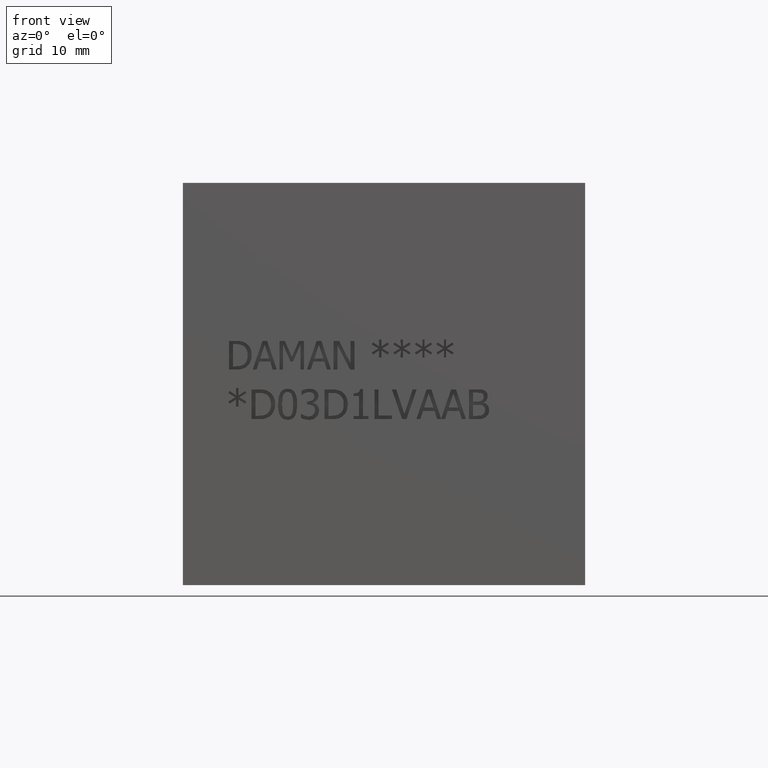
[diagram: clean part render]
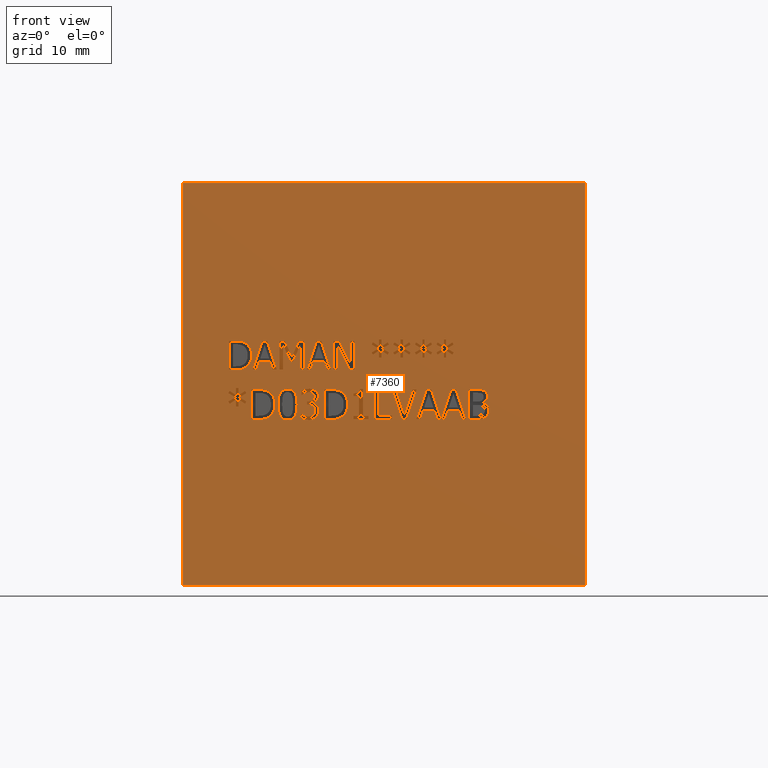
[diagram: same view with one face highlighted and labeled with its STEP entity id]
A machine part, front view. The second image highlights one B-rep face of the part: STEP entity #7360.
In plain terms, the highlighted planar face has unit normal (0, -1, 0).
Its self-contained STEP definition (entity closure, byte-faithful):
#181=FACE_BOUND('',#1001,.T.);
#182=FACE_BOUND('',#1002,.T.);
#183=FACE_BOUND('',#1003,.T.);
#184=FACE_BOUND('',#1004,.T.);
#185=FACE_BOUND('',#1005,.T.);
#186=FACE_BOUND('',#1006,.T.);
#187=FACE_BOUND('',#1007,.T.);
#188=FACE_BOUND('',#1008,.T.);
#189=FACE_BOUND('',#1009,.T.);
#190=FACE_BOUND('',#1010,.T.);
#191=FACE_BOUND('',#1011,.T.);
#192=FACE_BOUND('',#1012,.T.);
#193=FACE_BOUND('',#1013,.T.);
#194=FACE_BOUND('',#1014,.T.);
#195=FACE_BOUND('',#1015,.T.);
#196=FACE_BOUND('',#1016,.T.);
#197=FACE_BOUND('',#1017,.T.);
#198=FACE_BOUND('',#1018,.T.);
#199=FACE_BOUND('',#1019,.T.);
#235=B_SPLINE_CURVE_WITH_KNOTS('',2,(#9718,#9719,#9720,#9721),
 .UNSPECIFIED.,.F.,.F.,(3,1,3),(0.,1.,2.),.UNSPECIFIED.);
#245=B_SPLINE_CURVE_WITH_KNOTS('',2,(#9866,#9867,#9868,#9869),
 .UNSPECIFIED.,.F.,.F.,(3,1,3),(0.,1.,2.),.UNSPECIFIED.);
#247=B_SPLINE_CURVE_WITH_KNOTS('',2,(#9887,#9888,#9889,#9890),
 .UNSPECIFIED.,.F.,.F.,(3,1,3),(0.,1.,2.),.UNSPECIFIED.);
#249=B_SPLINE_CURVE_WITH_KNOTS('',2,(#9924,#9925,#9926,#9927),
 .UNSPECIFIED.,.F.,.F.,(3,1,3),(0.,1.,2.),.UNSPECIFIED.);
#251=B_SPLINE_CURVE_WITH_KNOTS('',2,(#9942,#9943,#9944,#9945),
 .UNSPECIFIED.,.F.,.F.,(3,1,3),(0.,1.,2.),.UNSPECIFIED.);
#261=B_SPLINE_CURVE_WITH_KNOTS('',2,(#10164,#10165,#10166,#10167),
 .UNSPECIFIED.,.F.,.F.,(3,1,3),(0.,1.,2.),.UNSPECIFIED.);
#263=B_SPLINE_CURVE_WITH_KNOTS('',2,(#10185,#10186,#10187,#10188),
 .UNSPECIFIED.,.F.,.F.,(3,1,3),(0.,1.,2.),.UNSPECIFIED.);
#265=B_SPLINE_CURVE_WITH_KNOTS('',2,(#10222,#10223,#10224,#10225),
 .UNSPECIFIED.,.F.,.F.,(3,1,3),(0.,1.,2.),.UNSPECIFIED.);
#267=B_SPLINE_CURVE_WITH_KNOTS('',2,(#10240,#10241,#10242,#10243),
 .UNSPECIFIED.,.F.,.F.,(3,1,3),(0.,1.,2.),.UNSPECIFIED.);
#285=B_SPLINE_CURVE_WITH_KNOTS('',2,(#10411,#10412,#10413,#10414),
 .UNSPECIFIED.,.F.,.F.,(3,1,3),(0.,1.,2.),.UNSPECIFIED.);
#287=B_SPLINE_CURVE_WITH_KNOTS('',2,(#10432,#10433,#10434,#10435),
 .UNSPECIFIED.,.F.,.F.,(3,1,3),(0.,1.,2.),.UNSPECIFIED.);
#289=B_SPLINE_CURVE_WITH_KNOTS('',2,(#10451,#10452,#10453,#10454),
 .UNSPECIFIED.,.F.,.F.,(3,1,3),(0.,1.,2.),.UNSPECIFIED.);
#291=B_SPLINE_CURVE_WITH_KNOTS('',2,(#10469,#10470,#10471,#10472),
 .UNSPECIFIED.,.F.,.F.,(3,1,3),(0.,1.,2.),.UNSPECIFIED.);
#293=B_SPLINE_CURVE_WITH_KNOTS('',2,(#10488,#10489,#10490,#10491),
 .UNSPECIFIED.,.F.,.F.,(3,1,3),(0.,1.,2.),.UNSPECIFIED.);
#295=B_SPLINE_CURVE_WITH_KNOTS('',2,(#10509,#10510,#10511,#10512),
 .UNSPECIFIED.,.F.,.F.,(3,1,3),(0.,1.,2.),.UNSPECIFIED.);
#297=B_SPLINE_CURVE_WITH_KNOTS('',2,(#10528,#10529,#10530,#10531),
 .UNSPECIFIED.,.F.,.F.,(3,1,3),(0.,1.,2.),.UNSPECIFIED.);
#299=B_SPLINE_CURVE_WITH_KNOTS('',2,(#10565,#10566,#10567,#10568),
 .UNSPECIFIED.,.F.,.F.,(3,1,3),(0.,1.,2.),.UNSPECIFIED.);
#301=B_SPLINE_CURVE_WITH_KNOTS('',2,(#10584,#10585,#10586,#10587),
 .UNSPECIFIED.,.F.,.F.,(3,1,3),(0.,1.,2.),.UNSPECIFIED.);
#303=B_SPLINE_CURVE_WITH_KNOTS('',2,(#10603,#10604,#10605,#10606),
 .UNSPECIFIED.,.F.,.F.,(3,1,3),(0.,1.,2.),.UNSPECIFIED.);
#305=B_SPLINE_CURVE_WITH_KNOTS('',2,(#10622,#10623,#10624,#10625),
 .UNSPECIFIED.,.F.,.F.,(3,1,3),(0.,1.,2.),.UNSPECIFIED.);
#307=B_SPLINE_CURVE_WITH_KNOTS('',2,(#10641,#10642,#10643,#10644),
 .UNSPECIFIED.,.F.,.F.,(3,1,3),(0.,1.,2.),.UNSPECIFIED.);
#309=B_SPLINE_CURVE_WITH_KNOTS('',2,(#10672,#10673,#10674,#10675),
 .UNSPECIFIED.,.F.,.F.,(3,1,3),(0.,1.,2.),.UNSPECIFIED.);
#311=B_SPLINE_CURVE_WITH_KNOTS('',2,(#10691,#10692,#10693,#10694),
 .UNSPECIFIED.,.F.,.F.,(3,1,3),(0.,1.,2.),.UNSPECIFIED.);
#313=B_SPLINE_CURVE_WITH_KNOTS('',2,(#10710,#10711,#10712,#10713),
 .UNSPECIFIED.,.F.,.F.,(3,1,3),(0.,1.,2.),.UNSPECIFIED.);
#315=B_SPLINE_CURVE_WITH_KNOTS('',2,(#10729,#10730,#10731,#10732),
 .UNSPECIFIED.,.F.,.F.,(3,1,3),(0.,1.,2.),.UNSPECIFIED.);
#317=B_SPLINE_CURVE_WITH_KNOTS('',2,(#10748,#10749,#10750,#10751),
 .UNSPECIFIED.,.F.,.F.,(3,1,3),(0.,1.,2.),.UNSPECIFIED.);
#319=B_SPLINE_CURVE_WITH_KNOTS('',2,(#10773,#10774,#10775,#10776),
 .UNSPECIFIED.,.F.,.F.,(3,1,3),(0.,1.,2.),.UNSPECIFIED.);
#321=B_SPLINE_CURVE_WITH_KNOTS('',2,(#10792,#10793,#10794,#10795),
 .UNSPECIFIED.,.F.,.F.,(3,1,3),(0.,1.,2.),.UNSPECIFIED.);
#323=B_SPLINE_CURVE_WITH_KNOTS('',2,(#10811,#10812,#10813,#10814),
 .UNSPECIFIED.,.F.,.F.,(3,1,3),(0.,1.,2.),.UNSPECIFIED.);
#325=B_SPLINE_CURVE_WITH_KNOTS('',2,(#10830,#10831,#10832,#10833),
 .UNSPECIFIED.,.F.,.F.,(3,1,3),(0.,1.,2.),.UNSPECIFIED.);
#327=B_SPLINE_CURVE_WITH_KNOTS('',2,(#10861,#10862,#10863,#10864),
 .UNSPECIFIED.,.F.,.F.,(3,1,3),(0.,1.,2.),.UNSPECIFIED.);
#329=B_SPLINE_CURVE_WITH_KNOTS('',2,(#10879,#10880,#10881,#10882),
 .UNSPECIFIED.,.F.,.F.,(3,1,3),(0.,1.,2.),.UNSPECIFIED.);
#347=B_SPLINE_CURVE_WITH_KNOTS('',2,(#11250,#11251,#11252,#11253),
 .UNSPECIFIED.,.F.,.F.,(3,1,3),(0.,1.,2.),.UNSPECIFIED.);
#349=B_SPLINE_CURVE_WITH_KNOTS('',2,(#11277,#11278,#11279,#11280),
 .UNSPECIFIED.,.F.,.F.,(3,1,3),(0.,1.,2.),.UNSPECIFIED.);
#351=B_SPLINE_CURVE_WITH_KNOTS('',2,(#11296,#11297,#11298,#11299),
 .UNSPECIFIED.,.F.,.F.,(3,1,3),(0.,1.,2.),.UNSPECIFIED.);
#353=B_SPLINE_CURVE_WITH_KNOTS('',2,(#11315,#11316,#11317,#11318),
 .UNSPECIFIED.,.F.,.F.,(3,1,3),(0.,1.,2.),.UNSPECIFIED.);
#355=B_SPLINE_CURVE_WITH_KNOTS('',2,(#11352,#11353,#11354,#11355),
 .UNSPECIFIED.,.F.,.F.,(3,1,3),(0.,1.,2.),.UNSPECIFIED.);
#357=B_SPLINE_CURVE_WITH_KNOTS('',2,(#11370,#11371,#11372,#11373),
 .UNSPECIFIED.,.F.,.F.,(3,1,3),(0.,1.,2.),.UNSPECIFIED.);
#359=B_SPLINE_CURVE_WITH_KNOTS('',2,(#11504,#11505,#11506,#11507),
 .UNSPECIFIED.,.F.,.F.,(3,1,3),(0.,1.,2.),.UNSPECIFIED.);
#360=B_SPLINE_CURVE_WITH_KNOTS('',2,(#11509,#11510,#11511,#11512),
 .UNSPECIFIED.,.F.,.F.,(3,1,3),(0.,1.,2.),.UNSPECIFIED.);
#361=B_SPLINE_CURVE_WITH_KNOTS('',2,(#11514,#11515,#11516,#11517),
 .UNSPECIFIED.,.F.,.F.,(3,1,3),(0.,1.,2.),.UNSPECIFIED.);
#362=B_SPLINE_CURVE_WITH_KNOTS('',2,(#11524,#11525,#11526,#11527),
 .UNSPECIFIED.,.F.,.F.,(3,1,3),(0.,1.,2.),.UNSPECIFIED.);
#611=FACE_OUTER_BOUND('',#1000,.T.);
#1000=EDGE_LOOP('',(#5339,#5340,#5341,#5342));
#1001=EDGE_LOOP('',(#5343,#5344,#5345,#5346,#5347,#5348,#5349,#5350,#5351,
#5352,#5353,#5354,#5355,#5356,#5357,#5358,#5359,#5360));
#1002=EDGE_LOOP('',(#5361,#5362,#5363,#5364,#5365,#5366,#5367,#5368,#5369,
#5370,#5371,#5372,#5373,#5374,#5375,#5376,#5377,#5378));
#1003=EDGE_LOOP('',(#5379,#5380,#5381,#5382,#5383,#5384,#5385,#5386,#5387,
#5388,#5389,#5390,#5391));
#1004=EDGE_LOOP('',(#5392,#5393,#5394,#5395,#5396,#5397,#5398,#5399));
#1005=EDGE_LOOP('',(#5400,#5401,#5402,#5403,#5404,#5405,#5406));
#1006=EDGE_LOOP('',(#5407,#5408,#5409,#5410,#5411,#5412,#5413,#5414));
#1007=EDGE_LOOP('',(#5415,#5416,#5417,#5418,#5419,#5420,#5421,#5422,#5423,
#5424));
#1008=EDGE_LOOP('',(#5425,#5426,#5427,#5428,#5429,#5430,#5431,#5432,#5433,
#5434,#5435,#5436,#5437,#5438,#5439,#5440,#5441,#5442));
#1009=EDGE_LOOP('',(#5443,#5444,#5445,#5446,#5447,#5448,#5449,#5450,#5451,
#5452,#5453,#5454,#5455,#5456,#5457,#5458,#5459,#5460));
#1010=EDGE_LOOP('',(#5461,#5462,#5463,#5464,#5465,#5466,#5467,#5468,#5469,
#5470));
#1011=EDGE_LOOP('',(#5471,#5472,#5473,#5474,#5475,#5476,#5477,#5478,#5479,
#5480,#5481,#5482,#5483,#5484,#5485));
#1012=EDGE_LOOP('',(#5486,#5487,#5488,#5489,#5490,#5491));
#1013=EDGE_LOOP('',(#5492,#5493,#5494,#5495,#5496,#5497,#5498,#5499,#5500,
#5501,#5502,#5503,#5504,#5505,#5506,#5507,#5508,#5509,#5510,#5511,#5512,
#5513,#5514,#5515,#5516,#5517,#5518));
#1014=EDGE_LOOP('',(#5519,#5520,#5521,#5522));
#1015=EDGE_LOOP('',(#5523,#5524,#5525,#5526,#5527,#5528,#5529));
#1016=EDGE_LOOP('',(#5530,#5531,#5532,#5533,#5534,#5535,#5536,#5537,#5538,
#5539,#5540,#5541,#5542,#5543,#5544,#5545,#5546,#5547));
#1017=EDGE_LOOP('',(#5548,#5549,#5550,#5551,#5552,#5553,#5554));
#1018=EDGE_LOOP('',(#5555,#5556,#5557,#5558,#5559,#5560,#5561,#5562,#5563,
#5564,#5565));
#1019=EDGE_LOOP('',(#5566,#5567,#5568,#5569,#5570,#5571,#5572));
#1272=LINE('',#9642,#2050);
#1276=LINE('',#9650,#2054);
#1279=LINE('',#9656,#2057);
#1282=LINE('',#9662,#2060);
#1285=LINE('',#9668,#2063);
#1288=LINE('',#9674,#2066);
#1291=LINE('',#9679,#2069);
#1293=LINE('',#9685,#2071);
#1297=LINE('',#9693,#2075);
#1300=LINE('',#9699,#2078);
#1303=LINE('',#9705,#2081);
#1307=LINE('',#9730,#2085);
#1310=LINE('',#9736,#2088);
#1313=LINE('',#9742,#2091);
#1316=LINE('',#9748,#2094);
#1319=LINE('',#9754,#2097);
#1322=LINE('',#9759,#2100);
#1340=LINE('',#9899,#2118);
#1343=LINE('',#9905,#2121);
#1346=LINE('',#9911,#2124);
#1350=LINE('',#9954,#2128);
#1354=LINE('',#9962,#2132);
#1357=LINE('',#9968,#2135);
#1360=LINE('',#9974,#2138);
#1363=LINE('',#9980,#2141);
#1366=LINE('',#9986,#2144);
#1369=LINE('',#9992,#2147);
#1372=LINE('',#9998,#2150);
#1375=LINE('',#10004,#2153);
#1378=LINE('',#10010,#2156);
#1381=LINE('',#10016,#2159);
#1384=LINE('',#10022,#2162);
#1387=LINE('',#10028,#2165);
#1390=LINE('',#10034,#2168);
#1393=LINE('',#10040,#2171);
#1396=LINE('',#10046,#2174);
#1399=LINE('',#10052,#2177);
#1402=LINE('',#10057,#2180);
#1420=LINE('',#10197,#2198);
#1423=LINE('',#10203,#2201);
#1426=LINE('',#10209,#2204);
#1446=LINE('',#10540,#2224);
#1449=LINE('',#10546,#2227);
#1452=LINE('',#10552,#2230);
#1460=LINE('',#10653,#2238);
#1463=LINE('',#10659,#2241);
#1471=LINE('',#10760,#2249);
#1478=LINE('',#10842,#2256);
#1481=LINE('',#10848,#2259);
#1485=LINE('',#10891,#2263);
#1489=LINE('',#10899,#2267);
#1492=LINE('',#10905,#2270);
#1495=LINE('',#10911,#2273);
#1498=LINE('',#10917,#2276);
#1501=LINE('',#10922,#2279);
#1515=LINE('',#10951,#2293);
#1516=LINE('',#10955,#2294);
#1520=LINE('',#10963,#2298);
#1523=LINE('',#10969,#2301);
#1526=LINE('',#10975,#2304);
#1529=LINE('',#10981,#2307);
#1532=LINE('',#10986,#2310);
#1534=LINE('',#10990,#2312);
#1546=LINE('',#11015,#2324);
#1550=LINE('',#11023,#2328);
#1553=LINE('',#11029,#2331);
#1556=LINE('',#11034,#2334);
#1558=LINE('',#11038,#2336);
#1561=LINE('',#11044,#2339);
#1564=LINE('',#11049,#2342);
#1594=LINE('',#11264,#2372);
#1600=LINE('',#11327,#2378);
#1603=LINE('',#11333,#2381);
#1606=LINE('',#11339,#2384);
#1610=LINE('',#11382,#2388);
#1611=LINE('',#11384,#2389);
#1612=LINE('',#11386,#2390);
#1613=LINE('',#11387,#2391);
#1614=LINE('',#11390,#2392);
#1615=LINE('',#11392,#2393);
#1616=LINE('',#11394,#2394);
#1617=LINE('',#11396,#2395);
#1618=LINE('',#11398,#2396);
#1619=LINE('',#11400,#2397);
#1620=LINE('',#11402,#2398);
#1621=LINE('',#11404,#2399);
#1622=LINE('',#11406,#2400);
#1623=LINE('',#11408,#2401);
#1624=LINE('',#11410,#2402);
#1625=LINE('',#11412,#2403);
#1626=LINE('',#11414,#2404);
#1627=LINE('',#11416,#2405);
#1628=LINE('',#11418,#2406);
#1629=LINE('',#11420,#2407);
#1630=LINE('',#11422,#2408);
#1631=LINE('',#11423,#2409);
#1632=LINE('',#11426,#2410);
#1633=LINE('',#11428,#2411);
#1634=LINE('',#11430,#2412);
#1635=LINE('',#11432,#2413);
#1636=LINE('',#11434,#2414);
#1637=LINE('',#11436,#2415);
#1638=LINE('',#11438,#2416);
#1639=LINE('',#11440,#2417);
#1640=LINE('',#11442,#2418);
#1641=LINE('',#11444,#2419);
#1642=LINE('',#11446,#2420);
#1643=LINE('',#11448,#2421);
#1644=LINE('',#11450,#2422);
#1645=LINE('',#11452,#2423);
#1646=LINE('',#11454,#2424);
#1647=LINE('',#11456,#2425);
#1648=LINE('',#11458,#2426);
#1649=LINE('',#11459,#2427);
#1650=LINE('',#11462,#2428);
#1651=LINE('',#11464,#2429);
#1652=LINE('',#11466,#2430);
#1653=LINE('',#11468,#2431);
#1654=LINE('',#11470,#2432);
#1655=LINE('',#11472,#2433);
#1656=LINE('',#11474,#2434);
#1657=LINE('',#11476,#2435);
#1658=LINE('',#11478,#2436);
#1659=LINE('',#11480,#2437);
#1660=LINE('',#11482,#2438);
#1661=LINE('',#11484,#2439);
#1662=LINE('',#11485,#2440);
#1663=LINE('',#11488,#2441);
#1664=LINE('',#11490,#2442);
#1665=LINE('',#11492,#2443);
#1666=LINE('',#11494,#2444);
#1667=LINE('',#11496,#2445);
#1668=LINE('',#11498,#2446);
#1669=LINE('',#11500,#2447);
#1670=LINE('',#11501,#2448);
#1671=LINE('',#11519,#2449);
#1672=LINE('',#11521,#2450);
#1673=LINE('',#11523,#2451);
#1674=LINE('',#11530,#2452);
#1675=LINE('',#11532,#2453);
#1676=LINE('',#11534,#2454);
#1677=LINE('',#11536,#2455);
#1678=LINE('',#11538,#2456);
#1679=LINE('',#11540,#2457);
#1680=LINE('',#11542,#2458);
#1681=LINE('',#11543,#2459);
#1682=LINE('',#11546,#2460);
#1683=LINE('',#11548,#2461);
#1684=LINE('',#11550,#2462);
#1685=LINE('',#11552,#2463);
#1686=LINE('',#11554,#2464);
#1687=LINE('',#11556,#2465);
#1688=LINE('',#11558,#2466);
#1689=LINE('',#11560,#2467);
#1690=LINE('',#11562,#2468);
#1691=LINE('',#11563,#2469);
#1692=LINE('',#11566,#2470);
#1693=LINE('',#11568,#2471);
#1694=LINE('',#11570,#2472);
#1695=LINE('',#11572,#2473);
#1696=LINE('',#11574,#2474);
#1697=LINE('',#11576,#2475);
#1698=LINE('',#11578,#2476);
#1699=LINE('',#11580,#2477);
#1700=LINE('',#11582,#2478);
#1701=LINE('',#11584,#2479);
#1702=LINE('',#11586,#2480);
#1703=LINE('',#11588,#2481);
#1704=LINE('',#11590,#2482);
#1705=LINE('',#11592,#2483);
#1706=LINE('',#11594,#2484);
#1707=LINE('',#11596,#2485);
#1708=LINE('',#11598,#2486);
#1709=LINE('',#11599,#2487);
#1710=LINE('',#11602,#2488);
#1711=LINE('',#11604,#2489);
#1712=LINE('',#11606,#2490);
#1713=LINE('',#11608,#2491);
#1714=LINE('',#11610,#2492);
#1715=LINE('',#11612,#2493);
#1716=LINE('',#11614,#2494);
#1717=LINE('',#11616,#2495);
#1718=LINE('',#11618,#2496);
#1719=LINE('',#11620,#2497);
#1720=LINE('',#11622,#2498);
#1721=LINE('',#11624,#2499);
#1722=LINE('',#11626,#2500);
#1723=LINE('',#11628,#2501);
#1724=LINE('',#11630,#2502);
#1725=LINE('',#11632,#2503);
#1726=LINE('',#11634,#2504);
#1727=LINE('',#11635,#2505);
#2050=VECTOR('',#8018,10.);
#2054=VECTOR('',#8024,10.);
#2057=VECTOR('',#8029,10.);
#2060=VECTOR('',#8034,10.);
#2063=VECTOR('',#8039,10.);
#2066=VECTOR('',#8044,10.);
#2069=VECTOR('',#8049,10.);
#2071=VECTOR('',#8055,10.);
#2075=VECTOR('',#8061,10.);
#2078=VECTOR('',#8066,10.);
#2081=VECTOR('',#8071,10.);
#2085=VECTOR('',#8077,10.);
#2088=VECTOR('',#8082,10.);
#2091=VECTOR('',#8087,10.);
#2094=VECTOR('',#8092,10.);
#2097=VECTOR('',#8097,10.);
#2100=VECTOR('',#8102,10.);
#2118=VECTOR('',#8130,10.);
#2121=VECTOR('',#8135,10.);
#2124=VECTOR('',#8140,10.);
#2128=VECTOR('',#8148,10.);
#2132=VECTOR('',#8154,10.);
#2135=VECTOR('',#8159,10.);
#2138=VECTOR('',#8164,10.);
#2141=VECTOR('',#8169,10.);
#2144=VECTOR('',#8174,10.);
#2147=VECTOR('',#8179,10.);
#2150=VECTOR('',#8184,10.);
#2153=VECTOR('',#8189,10.);
#2156=VECTOR('',#8194,10.);
#2159=VECTOR('',#8199,10.);
#2162=VECTOR('',#8204,10.);
#2165=VECTOR('',#8209,10.);
#2168=VECTOR('',#8214,10.);
#2171=VECTOR('',#8219,10.);
#2174=VECTOR('',#8224,10.);
#2177=VECTOR('',#8229,10.);
#2180=VECTOR('',#8234,10.);
#2198=VECTOR('',#8262,10.);
#2201=VECTOR('',#8267,10.);
#2204=VECTOR('',#8272,10.);
#2224=VECTOR('',#8298,10.);
#2227=VECTOR('',#8303,10.);
#2230=VECTOR('',#8308,10.);
#2238=VECTOR('',#8318,10.);
#2241=VECTOR('',#8323,10.);
#2249=VECTOR('',#8333,10.);
#2256=VECTOR('',#8342,10.);
#2259=VECTOR('',#8347,10.);
#2263=VECTOR('',#8355,10.);
#2267=VECTOR('',#8361,10.);
#2270=VECTOR('',#8366,10.);
#2273=VECTOR('',#8371,10.);
#2276=VECTOR('',#8376,10.);
#2279=VECTOR('',#8381,10.);
#2293=VECTOR('',#8405,10.);
#2294=VECTOR('',#8408,10.);
#2298=VECTOR('',#8414,10.);
#2301=VECTOR('',#8419,10.);
#2304=VECTOR('',#8424,10.);
#2307=VECTOR('',#8429,10.);
#2310=VECTOR('',#8434,10.);
#2312=VECTOR('',#8438,10.);
#2324=VECTOR('',#8458,10.);
#2328=VECTOR('',#8464,10.);
#2331=VECTOR('',#8469,10.);
#2334=VECTOR('',#8474,10.);
#2336=VECTOR('',#8478,10.);
#2339=VECTOR('',#8483,10.);
#2342=VECTOR('',#8488,10.);
#2372=VECTOR('',#8534,10.);
#2378=VECTOR('',#8542,10.);
#2381=VECTOR('',#8547,10.);
#2384=VECTOR('',#8552,10.);
#2388=VECTOR('',#8560,10.);
#2389=VECTOR('',#8561,10.);
#2390=VECTOR('',#8562,10.);
#2391=VECTOR('',#8563,10.);
#2392=VECTOR('',#8564,10.);
#2393=VECTOR('',#8565,10.);
#2394=VECTOR('',#8566,10.);
#2395=VECTOR('',#8567,10.);
#2396=VECTOR('',#8568,10.);
#2397=VECTOR('',#8569,10.);
#2398=VECTOR('',#8570,10.);
#2399=VECTOR('',#8571,10.);
#2400=VECTOR('',#8572,10.);
#2401=VECTOR('',#8573,10.);
#2402=VECTOR('',#8574,10.);
#2403=VECTOR('',#8575,10.);
#2404=VECTOR('',#8576,10.);
#2405=VECTOR('',#8577,10.);
#2406=VECTOR('',#8578,10.);
#2407=VECTOR('',#8579,10.);
#2408=VECTOR('',#8580,10.);
#2409=VECTOR('',#8581,10.);
#2410=VECTOR('',#8582,10.);
#2411=VECTOR('',#8583,10.);
#2412=VECTOR('',#8584,10.);
#2413=VECTOR('',#8585,10.);
#2414=VECTOR('',#8586,10.);
#2415=VECTOR('',#8587,10.);
#2416=VECTOR('',#8588,10.);
#2417=VECTOR('',#8589,10.);
#2418=VECTOR('',#8590,10.);
#2419=VECTOR('',#8591,10.);
#2420=VECTOR('',#8592,10.);
#2421=VECTOR('',#8593,10.);
#2422=VECTOR('',#8594,10.);
#2423=VECTOR('',#8595,10.);
#2424=VECTOR('',#8596,10.);
#2425=VECTOR('',#8597,10.);
#2426=VECTOR('',#8598,10.);
#2427=VECTOR('',#8599,10.);
#2428=VECTOR('',#8600,10.);
#2429=VECTOR('',#8601,10.);
#2430=VECTOR('',#8602,10.);
#2431=VECTOR('',#8603,10.);
#2432=VECTOR('',#8604,10.);
#2433=VECTOR('',#8605,10.);
#2434=VECTOR('',#8606,10.);
#2435=VECTOR('',#8607,10.);
#2436=VECTOR('',#8608,10.);
#2437=VECTOR('',#8609,10.);
#2438=VECTOR('',#8610,10.);
#2439=VECTOR('',#8611,10.);
#2440=VECTOR('',#8612,10.);
#2441=VECTOR('',#8613,10.);
#2442=VECTOR('',#8614,10.);
#2443=VECTOR('',#8615,10.);
#2444=VECTOR('',#8616,10.);
#2445=VECTOR('',#8617,10.);
#2446=VECTOR('',#8618,10.);
#2447=VECTOR('',#8619,10.);
#2448=VECTOR('',#8620,10.);
#2449=VECTOR('',#8621,10.);
#2450=VECTOR('',#8622,10.);
#2451=VECTOR('',#8623,10.);
#2452=VECTOR('',#8624,10.);
#2453=VECTOR('',#8625,10.);
#2454=VECTOR('',#8626,10.);
#2455=VECTOR('',#8627,10.);
#2456=VECTOR('',#8628,10.);
#2457=VECTOR('',#8629,10.);
#2458=VECTOR('',#8630,10.);
#2459=VECTOR('',#8631,10.);
#2460=VECTOR('',#8632,10.);
#2461=VECTOR('',#8633,10.);
#2462=VECTOR('',#8634,10.);
#2463=VECTOR('',#8635,10.);
#2464=VECTOR('',#8636,10.);
#2465=VECTOR('',#8637,10.);
#2466=VECTOR('',#8638,10.);
#2467=VECTOR('',#8639,10.);
#2468=VECTOR('',#8640,10.);
#2469=VECTOR('',#8641,10.);
#2470=VECTOR('',#8642,10.);
#2471=VECTOR('',#8643,10.);
#2472=VECTOR('',#8644,10.);
#2473=VECTOR('',#8645,10.);
#2474=VECTOR('',#8646,10.);
#2475=VECTOR('',#8647,10.);
#2476=VECTOR('',#8648,10.);
#2477=VECTOR('',#8649,10.);
#2478=VECTOR('',#8650,10.);
#2479=VECTOR('',#8651,10.);
#2480=VECTOR('',#8652,10.);
#2481=VECTOR('',#8653,10.);
#2482=VECTOR('',#8654,10.);
#2483=VECTOR('',#8655,10.);
#2484=VECTOR('',#8656,10.);
#2485=VECTOR('',#8657,10.);
#2486=VECTOR('',#8658,10.);
#2487=VECTOR('',#8659,10.);
#2488=VECTOR('',#8660,10.);
#2489=VECTOR('',#8661,10.);
#2490=VECTOR('',#8662,10.);
#2491=VECTOR('',#8663,10.);
#2492=VECTOR('',#8664,10.);
#2493=VECTOR('',#8665,10.);
#2494=VECTOR('',#8666,10.);
#2495=VECTOR('',#8667,10.);
#2496=VECTOR('',#8668,10.);
#2497=VECTOR('',#8669,10.);
#2498=VECTOR('',#8670,10.);
#2499=VECTOR('',#8671,10.);
#2500=VECTOR('',#8672,10.);
#2501=VECTOR('',#8673,10.);
#2502=VECTOR('',#8674,10.);
#2503=VECTOR('',#8675,10.);
#2504=VECTOR('',#8676,10.);
#2505=VECTOR('',#8677,10.);
#2828=VERTEX_POINT('',#9640);
#2829=VERTEX_POINT('',#9641);
#2832=VERTEX_POINT('',#9649);
#2834=VERTEX_POINT('',#9655);
#2836=VERTEX_POINT('',#9661);
#2838=VERTEX_POINT('',#9667);
#2840=VERTEX_POINT('',#9673);
#2842=VERTEX_POINT('',#9683);
#2843=VERTEX_POINT('',#9684);
#2846=VERTEX_POINT('',#9692);
#2848=VERTEX_POINT('',#9698);
#2850=VERTEX_POINT('',#9704);
#2852=VERTEX_POINT('',#9717);
#2854=VERTEX_POINT('',#9729);
#2856=VERTEX_POINT('',#9735);
#2858=VERTEX_POINT('',#9741);
#2860=VERTEX_POINT('',#9747);
#2862=VERTEX_POINT('',#9753);
#2878=VERTEX_POINT('',#9864);
#2879=VERTEX_POINT('',#9865);
#2882=VERTEX_POINT('',#9886);
#2884=VERTEX_POINT('',#9898);
#2886=VERTEX_POINT('',#9904);
#2888=VERTEX_POINT('',#9910);
#2890=VERTEX_POINT('',#9923);
#2892=VERTEX_POINT('',#9952);
#2893=VERTEX_POINT('',#9953);
#2896=VERTEX_POINT('',#9961);
#2898=VERTEX_POINT('',#9967);
#2900=VERTEX_POINT('',#9973);
#2902=VERTEX_POINT('',#9979);
#2904=VERTEX_POINT('',#9985);
#2906=VERTEX_POINT('',#9991);
#2908=VERTEX_POINT('',#9997);
#2910=VERTEX_POINT('',#10003);
#2912=VERTEX_POINT('',#10009);
#2914=VERTEX_POINT('',#10015);
#2916=VERTEX_POINT('',#10021);
#2918=VERTEX_POINT('',#10027);
#2920=VERTEX_POINT('',#10033);
#2922=VERTEX_POINT('',#10039);
#2924=VERTEX_POINT('',#10045);
#2926=VERTEX_POINT('',#10051);
#2942=VERTEX_POINT('',#10162);
#2943=VERTEX_POINT('',#10163);
#2946=VERTEX_POINT('',#10184);
#2948=VERTEX_POINT('',#10196);
#2950=VERTEX_POINT('',#10202);
#2952=VERTEX_POINT('',#10208);
#2954=VERTEX_POINT('',#10221);
#2972=VERTEX_POINT('',#10409);
#2973=VERTEX_POINT('',#10410);
#2976=VERTEX_POINT('',#10431);
#2978=VERTEX_POINT('',#10450);
#2980=VERTEX_POINT('',#10486);
#2981=VERTEX_POINT('',#10487);
#2984=VERTEX_POINT('',#10508);
#2986=VERTEX_POINT('',#10527);
#2988=VERTEX_POINT('',#10539);
#2990=VERTEX_POINT('',#10545);
#2992=VERTEX_POINT('',#10551);
#2994=VERTEX_POINT('',#10564);
#2996=VERTEX_POINT('',#10583);
#2998=VERTEX_POINT('',#10602);
#3000=VERTEX_POINT('',#10621);
#3002=VERTEX_POINT('',#10640);
#3004=VERTEX_POINT('',#10652);
#3006=VERTEX_POINT('',#10658);
#3008=VERTEX_POINT('',#10671);
#3010=VERTEX_POINT('',#10690);
#3012=VERTEX_POINT('',#10709);
#3014=VERTEX_POINT('',#10728);
#3016=VERTEX_POINT('',#10747);
#3018=VERTEX_POINT('',#10759);
#3020=VERTEX_POINT('',#10772);
#3022=VERTEX_POINT('',#10791);
#3024=VERTEX_POINT('',#10810);
#3026=VERTEX_POINT('',#10829);
#3028=VERTEX_POINT('',#10841);
#3030=VERTEX_POINT('',#10847);
#3032=VERTEX_POINT('',#10860);
#3034=VERTEX_POINT('',#10889);
#3035=VERTEX_POINT('',#10890);
#3038=VERTEX_POINT('',#10898);
#3040=VERTEX_POINT('',#10904);
#3042=VERTEX_POINT('',#10910);
#3044=VERTEX_POINT('',#10916);
#3052=VERTEX_POINT('',#10944);
#3055=VERTEX_POINT('',#10949);
#3056=VERTEX_POINT('',#10953);
#3057=VERTEX_POINT('',#10954);
#3060=VERTEX_POINT('',#10962);
#3062=VERTEX_POINT('',#10968);
#3064=VERTEX_POINT('',#10974);
#3066=VERTEX_POINT('',#10980);
#3068=VERTEX_POINT('',#10989);
#3076=VERTEX_POINT('',#11013);
#3077=VERTEX_POINT('',#11014);
#3080=VERTEX_POINT('',#11022);
#3082=VERTEX_POINT('',#11028);
#3084=VERTEX_POINT('',#11037);
#3086=VERTEX_POINT('',#11043);
#3116=VERTEX_POINT('',#11248);
#3117=VERTEX_POINT('',#11249);
#3120=VERTEX_POINT('',#11263);
#3122=VERTEX_POINT('',#11276);
#3124=VERTEX_POINT('',#11295);
#3126=VERTEX_POINT('',#11314);
#3128=VERTEX_POINT('',#11326);
#3130=VERTEX_POINT('',#11332);
#3132=VERTEX_POINT('',#11338);
#3134=VERTEX_POINT('',#11351);
#3136=VERTEX_POINT('',#11380);
#3137=VERTEX_POINT('',#11381);
#3138=VERTEX_POINT('',#11383);
#3139=VERTEX_POINT('',#11385);
#3140=VERTEX_POINT('',#11388);
#3141=VERTEX_POINT('',#11389);
#3142=VERTEX_POINT('',#11391);
#3143=VERTEX_POINT('',#11393);
#3144=VERTEX_POINT('',#11395);
#3145=VERTEX_POINT('',#11397);
#3146=VERTEX_POINT('',#11399);
#3147=VERTEX_POINT('',#11401);
#3148=VERTEX_POINT('',#11403);
#3149=VERTEX_POINT('',#11405);
#3150=VERTEX_POINT('',#11407);
#3151=VERTEX_POINT('',#11409);
#3152=VERTEX_POINT('',#11411);
#3153=VERTEX_POINT('',#11413);
#3154=VERTEX_POINT('',#11415);
#3155=VERTEX_POINT('',#11417);
#3156=VERTEX_POINT('',#11419);
#3157=VERTEX_POINT('',#11421);
#3158=VERTEX_POINT('',#11424);
#3159=VERTEX_POINT('',#11425);
#3160=VERTEX_POINT('',#11427);
#3161=VERTEX_POINT('',#11429);
#3162=VERTEX_POINT('',#11431);
#3163=VERTEX_POINT('',#11433);
#3164=VERTEX_POINT('',#11435);
#3165=VERTEX_POINT('',#11437);
#3166=VERTEX_POINT('',#11439);
#3167=VERTEX_POINT('',#11441);
#3168=VERTEX_POINT('',#11443);
#3169=VERTEX_POINT('',#11445);
#3170=VERTEX_POINT('',#11447);
#3171=VERTEX_POINT('',#11449);
#3172=VERTEX_POINT('',#11451);
#3173=VERTEX_POINT('',#11453);
#3174=VERTEX_POINT('',#11455);
#3175=VERTEX_POINT('',#11457);
#3176=VERTEX_POINT('',#11460);
#3177=VERTEX_POINT('',#11461);
#3178=VERTEX_POINT('',#11463);
#3179=VERTEX_POINT('',#11465);
#3180=VERTEX_POINT('',#11467);
#3181=VERTEX_POINT('',#11469);
#3182=VERTEX_POINT('',#11471);
#3183=VERTEX_POINT('',#11473);
#3184=VERTEX_POINT('',#11475);
#3185=VERTEX_POINT('',#11477);
#3186=VERTEX_POINT('',#11479);
#3187=VERTEX_POINT('',#11481);
#3188=VERTEX_POINT('',#11483);
#3189=VERTEX_POINT('',#11486);
#3190=VERTEX_POINT('',#11487);
#3191=VERTEX_POINT('',#11489);
#3192=VERTEX_POINT('',#11491);
#3193=VERTEX_POINT('',#11493);
#3194=VERTEX_POINT('',#11495);
#3195=VERTEX_POINT('',#11497);
#3196=VERTEX_POINT('',#11499);
#3197=VERTEX_POINT('',#11502);
#3198=VERTEX_POINT('',#11503);
#3199=VERTEX_POINT('',#11508);
#3200=VERTEX_POINT('',#11513);
#3201=VERTEX_POINT('',#11518);
#3202=VERTEX_POINT('',#11520);
#3203=VERTEX_POINT('',#11522);
#3204=VERTEX_POINT('',#11528);
#3205=VERTEX_POINT('',#11529);
#3206=VERTEX_POINT('',#11531);
#3207=VERTEX_POINT('',#11533);
#3208=VERTEX_POINT('',#11535);
#3209=VERTEX_POINT('',#11537);
#3210=VERTEX_POINT('',#11539);
#3211=VERTEX_POINT('',#11541);
#3212=VERTEX_POINT('',#11544);
#3213=VERTEX_POINT('',#11545);
#3214=VERTEX_POINT('',#11547);
#3215=VERTEX_POINT('',#11549);
#3216=VERTEX_POINT('',#11551);
#3217=VERTEX_POINT('',#11553);
#3218=VERTEX_POINT('',#11555);
#3219=VERTEX_POINT('',#11557);
#3220=VERTEX_POINT('',#11559);
#3221=VERTEX_POINT('',#11561);
#3222=VERTEX_POINT('',#11564);
#3223=VERTEX_POINT('',#11565);
#3224=VERTEX_POINT('',#11567);
#3225=VERTEX_POINT('',#11569);
#3226=VERTEX_POINT('',#11571);
#3227=VERTEX_POINT('',#11573);
#3228=VERTEX_POINT('',#11575);
#3229=VERTEX_POINT('',#11577);
#3230=VERTEX_POINT('',#11579);
#3231=VERTEX_POINT('',#11581);
#3232=VERTEX_POINT('',#11583);
#3233=VERTEX_POINT('',#11585);
#3234=VERTEX_POINT('',#11587);
#3235=VERTEX_POINT('',#11589);
#3236=VERTEX_POINT('',#11591);
#3237=VERTEX_POINT('',#11593);
#3238=VERTEX_POINT('',#11595);
#3239=VERTEX_POINT('',#11597);
#3240=VERTEX_POINT('',#11600);
#3241=VERTEX_POINT('',#11601);
#3242=VERTEX_POINT('',#11603);
#3243=VERTEX_POINT('',#11605);
#3244=VERTEX_POINT('',#11607);
#3245=VERTEX_POINT('',#11609);
#3246=VERTEX_POINT('',#11611);
#3247=VERTEX_POINT('',#11613);
#3248=VERTEX_POINT('',#11615);
#3249=VERTEX_POINT('',#11617);
#3250=VERTEX_POINT('',#11619);
#3251=VERTEX_POINT('',#11621);
#3252=VERTEX_POINT('',#11623);
#3253=VERTEX_POINT('',#11625);
#3254=VERTEX_POINT('',#11627);
#3255=VERTEX_POINT('',#11629);
#3256=VERTEX_POINT('',#11631);
#3257=VERTEX_POINT('',#11633);
#3539=EDGE_CURVE('',#2828,#2829,#1272,.T.);
#3543=EDGE_CURVE('',#2832,#2828,#1276,.T.);
#3546=EDGE_CURVE('',#2834,#2832,#1279,.T.);
#3549=EDGE_CURVE('',#2836,#2834,#1282,.T.);
#3552=EDGE_CURVE('',#2838,#2836,#1285,.T.);
#3555=EDGE_CURVE('',#2840,#2838,#1288,.T.);
#3558=EDGE_CURVE('',#2829,#2840,#1291,.T.);
#3560=EDGE_CURVE('',#2842,#2843,#1293,.T.);
#3564=EDGE_CURVE('',#2846,#2842,#1297,.T.);
#3567=EDGE_CURVE('',#2848,#2846,#1300,.T.);
#3570=EDGE_CURVE('',#2850,#2848,#1303,.T.);
#3573=EDGE_CURVE('',#2852,#2850,#235,.T.);
#3576=EDGE_CURVE('',#2854,#2852,#1307,.T.);
#3579=EDGE_CURVE('',#2856,#2854,#1310,.T.);
#3582=EDGE_CURVE('',#2858,#2856,#1313,.T.);
#3585=EDGE_CURVE('',#2860,#2858,#1316,.T.);
#3588=EDGE_CURVE('',#2862,#2860,#1319,.T.);
#3591=EDGE_CURVE('',#2843,#2862,#1322,.T.);
#3614=EDGE_CURVE('',#2878,#2879,#245,.T.);
#3618=EDGE_CURVE('',#2882,#2878,#247,.T.);
#3621=EDGE_CURVE('',#2884,#2882,#1340,.T.);
#3624=EDGE_CURVE('',#2886,#2884,#1343,.T.);
#3627=EDGE_CURVE('',#2888,#2886,#1346,.T.);
#3630=EDGE_CURVE('',#2890,#2888,#249,.T.);
#3633=EDGE_CURVE('',#2879,#2890,#251,.T.);
#3635=EDGE_CURVE('',#2892,#2893,#1350,.T.);
#3639=EDGE_CURVE('',#2896,#2892,#1354,.T.);
#3642=EDGE_CURVE('',#2898,#2896,#1357,.T.);
#3645=EDGE_CURVE('',#2900,#2898,#1360,.T.);
#3648=EDGE_CURVE('',#2902,#2900,#1363,.T.);
#3651=EDGE_CURVE('',#2904,#2902,#1366,.T.);
#3654=EDGE_CURVE('',#2906,#2904,#1369,.T.);
#3657=EDGE_CURVE('',#2908,#2906,#1372,.T.);
#3660=EDGE_CURVE('',#2910,#2908,#1375,.T.);
#3663=EDGE_CURVE('',#2912,#2910,#1378,.T.);
#3666=EDGE_CURVE('',#2914,#2912,#1381,.T.);
#3669=EDGE_CURVE('',#2916,#2914,#1384,.T.);
#3672=EDGE_CURVE('',#2918,#2916,#1387,.T.);
#3675=EDGE_CURVE('',#2920,#2918,#1390,.T.);
#3678=EDGE_CURVE('',#2922,#2920,#1393,.T.);
#3681=EDGE_CURVE('',#2924,#2922,#1396,.T.);
#3684=EDGE_CURVE('',#2926,#2924,#1399,.T.);
#3687=EDGE_CURVE('',#2893,#2926,#1402,.T.);
#3710=EDGE_CURVE('',#2942,#2943,#261,.T.);
#3714=EDGE_CURVE('',#2946,#2942,#263,.T.);
#3717=EDGE_CURVE('',#2948,#2946,#1420,.T.);
#3720=EDGE_CURVE('',#2950,#2948,#1423,.T.);
#3723=EDGE_CURVE('',#2952,#2950,#1426,.T.);
#3726=EDGE_CURVE('',#2954,#2952,#265,.T.);
#3729=EDGE_CURVE('',#2943,#2954,#267,.T.);
#3755=EDGE_CURVE('',#2972,#2973,#285,.T.);
#3759=EDGE_CURVE('',#2976,#2972,#287,.T.);
#3762=EDGE_CURVE('',#2978,#2976,#289,.T.);
#3765=EDGE_CURVE('',#2973,#2978,#291,.T.);
#3767=EDGE_CURVE('',#2980,#2981,#293,.T.);
#3771=EDGE_CURVE('',#2984,#2980,#295,.T.);
#3774=EDGE_CURVE('',#2986,#2984,#297,.T.);
#3777=EDGE_CURVE('',#2988,#2986,#1446,.T.);
#3780=EDGE_CURVE('',#2990,#2988,#1449,.T.);
#3783=EDGE_CURVE('',#2992,#2990,#1452,.T.);
#3786=EDGE_CURVE('',#2994,#2992,#299,.T.);
#3789=EDGE_CURVE('',#2996,#2994,#301,.T.);
#3792=EDGE_CURVE('',#2998,#2996,#303,.T.);
#3795=EDGE_CURVE('',#3000,#2998,#305,.T.);
#3798=EDGE_CURVE('',#3002,#3000,#307,.T.);
#3801=EDGE_CURVE('',#3004,#3002,#1460,.T.);
#3804=EDGE_CURVE('',#3006,#3004,#1463,.T.);
#3807=EDGE_CURVE('',#3008,#3006,#309,.T.);
#3810=EDGE_CURVE('',#3010,#3008,#311,.T.);
#3813=EDGE_CURVE('',#3012,#3010,#313,.T.);
#3816=EDGE_CURVE('',#3014,#3012,#315,.T.);
#3819=EDGE_CURVE('',#3016,#3014,#317,.T.);
#3822=EDGE_CURVE('',#3018,#3016,#1471,.T.);
#3825=EDGE_CURVE('',#3020,#3018,#319,.T.);
#3828=EDGE_CURVE('',#3022,#3020,#321,.T.);
#3831=EDGE_CURVE('',#3024,#3022,#323,.T.);
#3834=EDGE_CURVE('',#3026,#3024,#325,.T.);
#3837=EDGE_CURVE('',#3028,#3026,#1478,.T.);
#3840=EDGE_CURVE('',#3030,#3028,#1481,.T.);
#3843=EDGE_CURVE('',#3032,#3030,#327,.T.);
#3846=EDGE_CURVE('',#2981,#3032,#329,.T.);
#3848=EDGE_CURVE('',#3034,#3035,#1485,.T.);
#3852=EDGE_CURVE('',#3038,#3034,#1489,.T.);
#3855=EDGE_CURVE('',#3040,#3038,#1492,.T.);
#3858=EDGE_CURVE('',#3042,#3040,#1495,.T.);
#3861=EDGE_CURVE('',#3044,#3042,#1498,.T.);
#3864=EDGE_CURVE('',#3035,#3044,#1501,.T.);
#3878=EDGE_CURVE('',#3052,#3055,#1515,.T.);
#3879=EDGE_CURVE('',#3056,#3057,#1516,.T.);
#3883=EDGE_CURVE('',#3060,#3056,#1520,.T.);
#3886=EDGE_CURVE('',#3062,#3060,#1523,.T.);
#3889=EDGE_CURVE('',#3064,#3062,#1526,.T.);
#3892=EDGE_CURVE('',#3066,#3064,#1529,.T.);
#3895=EDGE_CURVE('',#3055,#3066,#1532,.T.);
#3897=EDGE_CURVE('',#3057,#3068,#1534,.T.);
#3909=EDGE_CURVE('',#3076,#3077,#1546,.T.);
#3913=EDGE_CURVE('',#3080,#3076,#1550,.T.);
#3916=EDGE_CURVE('',#3082,#3080,#1553,.T.);
#3919=EDGE_CURVE('',#3068,#3082,#1556,.T.);
#3921=EDGE_CURVE('',#3084,#3052,#1558,.T.);
#3924=EDGE_CURVE('',#3086,#3084,#1561,.T.);
#3927=EDGE_CURVE('',#3077,#3086,#1564,.T.);
#3971=EDGE_CURVE('',#3116,#3117,#347,.T.);
#3975=EDGE_CURVE('',#3120,#3116,#1594,.T.);
#3978=EDGE_CURVE('',#3122,#3120,#349,.T.);
#3981=EDGE_CURVE('',#3124,#3122,#351,.T.);
#3984=EDGE_CURVE('',#3126,#3124,#353,.T.);
#3987=EDGE_CURVE('',#3128,#3126,#1600,.T.);
#3990=EDGE_CURVE('',#3130,#3128,#1603,.T.);
#3993=EDGE_CURVE('',#3132,#3130,#1606,.T.);
#3996=EDGE_CURVE('',#3134,#3132,#355,.T.);
#3999=EDGE_CURVE('',#3117,#3134,#357,.T.);
#4001=EDGE_CURVE('',#3136,#3137,#1610,.T.);
#4002=EDGE_CURVE('',#3137,#3138,#1611,.T.);
#4003=EDGE_CURVE('',#3139,#3138,#1612,.T.);
#4004=EDGE_CURVE('',#3136,#3139,#1613,.T.);
#4005=EDGE_CURVE('',#3140,#3141,#1614,.T.);
#4006=EDGE_CURVE('',#3141,#3142,#1615,.T.);
#4007=EDGE_CURVE('',#3142,#3143,#1616,.T.);
#4008=EDGE_CURVE('',#3143,#3144,#1617,.T.);
#4009=EDGE_CURVE('',#3144,#3145,#1618,.T.);
#4010=EDGE_CURVE('',#3145,#3146,#1619,.T.);
#4011=EDGE_CURVE('',#3146,#3147,#1620,.T.);
#4012=EDGE_CURVE('',#3147,#3148,#1621,.T.);
#4013=EDGE_CURVE('',#3148,#3149,#1622,.T.);
#4014=EDGE_CURVE('',#3149,#3150,#1623,.T.);
#4015=EDGE_CURVE('',#3150,#3151,#1624,.T.);
#4016=EDGE_CURVE('',#3151,#3152,#1625,.T.);
#4017=EDGE_CURVE('',#3152,#3153,#1626,.T.);
#4018=EDGE_CURVE('',#3153,#3154,#1627,.T.);
#4019=EDGE_CURVE('',#3154,#3155,#1628,.T.);
#4020=EDGE_CURVE('',#3155,#3156,#1629,.T.);
#4021=EDGE_CURVE('',#3156,#3157,#1630,.T.);
#4022=EDGE_CURVE('',#3157,#3140,#1631,.T.);
#4023=EDGE_CURVE('',#3158,#3159,#1632,.T.);
#4024=EDGE_CURVE('',#3159,#3160,#1633,.T.);
#4025=EDGE_CURVE('',#3160,#3161,#1634,.T.);
#4026=EDGE_CURVE('',#3161,#3162,#1635,.T.);
#4027=EDGE_CURVE('',#3162,#3163,#1636,.T.);
#4028=EDGE_CURVE('',#3163,#3164,#1637,.T.);
#4029=EDGE_CURVE('',#3164,#3165,#1638,.T.);
#4030=EDGE_CURVE('',#3165,#3166,#1639,.T.);
#4031=EDGE_CURVE('',#3166,#3167,#1640,.T.);
#4032=EDGE_CURVE('',#3167,#3168,#1641,.T.);
#4033=EDGE_CURVE('',#3168,#3169,#1642,.T.);
#4034=EDGE_CURVE('',#3169,#3170,#1643,.T.);
#4035=EDGE_CURVE('',#3170,#3171,#1644,.T.);
#4036=EDGE_CURVE('',#3171,#3172,#1645,.T.);
#4037=EDGE_CURVE('',#3172,#3173,#1646,.T.);
#4038=EDGE_CURVE('',#3173,#3174,#1647,.T.);
#4039=EDGE_CURVE('',#3174,#3175,#1648,.T.);
#4040=EDGE_CURVE('',#3175,#3158,#1649,.T.);
#4041=EDGE_CURVE('',#3176,#3177,#1650,.T.);
#4042=EDGE_CURVE('',#3177,#3178,#1651,.T.);
#4043=EDGE_CURVE('',#3178,#3179,#1652,.T.);
#4044=EDGE_CURVE('',#3179,#3180,#1653,.T.);
#4045=EDGE_CURVE('',#3180,#3181,#1654,.T.);
#4046=EDGE_CURVE('',#3181,#3182,#1655,.T.);
#4047=EDGE_CURVE('',#3182,#3183,#1656,.T.);
#4048=EDGE_CURVE('',#3183,#3184,#1657,.T.);
#4049=EDGE_CURVE('',#3184,#3185,#1658,.T.);
#4050=EDGE_CURVE('',#3185,#3186,#1659,.T.);
#4051=EDGE_CURVE('',#3186,#3187,#1660,.T.);
#4052=EDGE_CURVE('',#3187,#3188,#1661,.T.);
#4053=EDGE_CURVE('',#3188,#3176,#1662,.T.);
#4054=EDGE_CURVE('',#3189,#3190,#1663,.T.);
#4055=EDGE_CURVE('',#3190,#3191,#1664,.T.);
#4056=EDGE_CURVE('',#3191,#3192,#1665,.T.);
#4057=EDGE_CURVE('',#3192,#3193,#1666,.T.);
#4058=EDGE_CURVE('',#3193,#3194,#1667,.T.);
#4059=EDGE_CURVE('',#3194,#3195,#1668,.T.);
#4060=EDGE_CURVE('',#3195,#3196,#1669,.T.);
#4061=EDGE_CURVE('',#3196,#3189,#1670,.T.);
#4062=EDGE_CURVE('',#3197,#3198,#359,.T.);
#4063=EDGE_CURVE('',#3198,#3199,#360,.T.);
#4064=EDGE_CURVE('',#3199,#3200,#361,.T.);
#4065=EDGE_CURVE('',#3200,#3201,#1671,.T.);
#4066=EDGE_CURVE('',#3201,#3202,#1672,.T.);
#4067=EDGE_CURVE('',#3202,#3203,#1673,.T.);
#4068=EDGE_CURVE('',#3203,#3197,#362,.T.);
#4069=EDGE_CURVE('',#3204,#3205,#1674,.T.);
#4070=EDGE_CURVE('',#3205,#3206,#1675,.T.);
#4071=EDGE_CURVE('',#3206,#3207,#1676,.T.);
#4072=EDGE_CURVE('',#3207,#3208,#1677,.T.);
#4073=EDGE_CURVE('',#3208,#3209,#1678,.T.);
#4074=EDGE_CURVE('',#3209,#3210,#1679,.T.);
#4075=EDGE_CURVE('',#3210,#3211,#1680,.T.);
#4076=EDGE_CURVE('',#3211,#3204,#1681,.T.);
#4077=EDGE_CURVE('',#3212,#3213,#1682,.T.);
#4078=EDGE_CURVE('',#3213,#3214,#1683,.T.);
#4079=EDGE_CURVE('',#3214,#3215,#1684,.T.);
#4080=EDGE_CURVE('',#3215,#3216,#1685,.T.);
#4081=EDGE_CURVE('',#3216,#3217,#1686,.T.);
#4082=EDGE_CURVE('',#3217,#3218,#1687,.T.);
#4083=EDGE_CURVE('',#3218,#3219,#1688,.T.);
#4084=EDGE_CURVE('',#3219,#3220,#1689,.T.);
#4085=EDGE_CURVE('',#3220,#3221,#1690,.T.);
#4086=EDGE_CURVE('',#3221,#3212,#1691,.T.);
#4087=EDGE_CURVE('',#3222,#3223,#1692,.T.);
#4088=EDGE_CURVE('',#3223,#3224,#1693,.T.);
#4089=EDGE_CURVE('',#3224,#3225,#1694,.T.);
#4090=EDGE_CURVE('',#3225,#3226,#1695,.T.);
#4091=EDGE_CURVE('',#3226,#3227,#1696,.T.);
#4092=EDGE_CURVE('',#3227,#3228,#1697,.T.);
#4093=EDGE_CURVE('',#3228,#3229,#1698,.T.);
#4094=EDGE_CURVE('',#3229,#3230,#1699,.T.);
#4095=EDGE_CURVE('',#3230,#3231,#1700,.T.);
#4096=EDGE_CURVE('',#3231,#3232,#1701,.T.);
#4097=EDGE_CURVE('',#3232,#3233,#1702,.T.);
#4098=EDGE_CURVE('',#3233,#3234,#1703,.T.);
#4099=EDGE_CURVE('',#3234,#3235,#1704,.T.);
#4100=EDGE_CURVE('',#3235,#3236,#1705,.T.);
#4101=EDGE_CURVE('',#3236,#3237,#1706,.T.);
#4102=EDGE_CURVE('',#3237,#3238,#1707,.T.);
#4103=EDGE_CURVE('',#3238,#3239,#1708,.T.);
#4104=EDGE_CURVE('',#3239,#3222,#1709,.T.);
#4105=EDGE_CURVE('',#3240,#3241,#1710,.T.);
#4106=EDGE_CURVE('',#3241,#3242,#1711,.T.);
#4107=EDGE_CURVE('',#3242,#3243,#1712,.T.);
#4108=EDGE_CURVE('',#3243,#3244,#1713,.T.);
#4109=EDGE_CURVE('',#3244,#3245,#1714,.T.);
#4110=EDGE_CURVE('',#3245,#3246,#1715,.T.);
#4111=EDGE_CURVE('',#3246,#3247,#1716,.T.);
#4112=EDGE_CURVE('',#3247,#3248,#1717,.T.);
#4113=EDGE_CURVE('',#3248,#3249,#1718,.T.);
#4114=EDGE_CURVE('',#3249,#3250,#1719,.T.);
#4115=EDGE_CURVE('',#3250,#3251,#1720,.T.);
#4116=EDGE_CURVE('',#3251,#3252,#1721,.T.);
#4117=EDGE_CURVE('',#3252,#3253,#1722,.T.);
#4118=EDGE_CURVE('',#3253,#3254,#1723,.T.);
#4119=EDGE_CURVE('',#3254,#3255,#1724,.T.);
#4120=EDGE_CURVE('',#3255,#3256,#1725,.T.);
#4121=EDGE_CURVE('',#3256,#3257,#1726,.T.);
#4122=EDGE_CURVE('',#3257,#3240,#1727,.T.);
#5339=ORIENTED_EDGE('',*,*,#4001,.T.);
#5340=ORIENTED_EDGE('',*,*,#4002,.T.);
#5341=ORIENTED_EDGE('',*,*,#4003,.F.);
#5342=ORIENTED_EDGE('',*,*,#4004,.F.);
#5343=ORIENTED_EDGE('',*,*,#4005,.T.);
#5344=ORIENTED_EDGE('',*,*,#4006,.T.);
#5345=ORIENTED_EDGE('',*,*,#4007,.T.);
#5346=ORIENTED_EDGE('',*,*,#4008,.T.);
#5347=ORIENTED_EDGE('',*,*,#4009,.T.);
#5348=ORIENTED_EDGE('',*,*,#4010,.T.);
#5349=ORIENTED_EDGE('',*,*,#4011,.T.);
#5350=ORIENTED_EDGE('',*,*,#4012,.T.);
#5351=ORIENTED_EDGE('',*,*,#4013,.T.);
#5352=ORIENTED_EDGE('',*,*,#4014,.T.);
#5353=ORIENTED_EDGE('',*,*,#4015,.T.);
#5354=ORIENTED_EDGE('',*,*,#4016,.T.);
#5355=ORIENTED_EDGE('',*,*,#4017,.T.);
#5356=ORIENTED_EDGE('',*,*,#4018,.T.);
#5357=ORIENTED_EDGE('',*,*,#4019,.T.);
#5358=ORIENTED_EDGE('',*,*,#4020,.T.);
#5359=ORIENTED_EDGE('',*,*,#4021,.T.);
#5360=ORIENTED_EDGE('',*,*,#4022,.T.);
#5361=ORIENTED_EDGE('',*,*,#4023,.T.);
#5362=ORIENTED_EDGE('',*,*,#4024,.T.);
#5363=ORIENTED_EDGE('',*,*,#4025,.T.);
#5364=ORIENTED_EDGE('',*,*,#4026,.T.);
#5365=ORIENTED_EDGE('',*,*,#4027,.T.);
#5366=ORIENTED_EDGE('',*,*,#4028,.T.);
#5367=ORIENTED_EDGE('',*,*,#4029,.T.);
#5368=ORIENTED_EDGE('',*,*,#4030,.T.);
#5369=ORIENTED_EDGE('',*,*,#4031,.T.);
#5370=ORIENTED_EDGE('',*,*,#4032,.T.);
#5371=ORIENTED_EDGE('',*,*,#4033,.T.);
#5372=ORIENTED_EDGE('',*,*,#4034,.T.);
#5373=ORIENTED_EDGE('',*,*,#4035,.T.);
#5374=ORIENTED_EDGE('',*,*,#4036,.T.);
#5375=ORIENTED_EDGE('',*,*,#4037,.T.);
#5376=ORIENTED_EDGE('',*,*,#4038,.T.);
#5377=ORIENTED_EDGE('',*,*,#4039,.T.);
#5378=ORIENTED_EDGE('',*,*,#4040,.T.);
#5379=ORIENTED_EDGE('',*,*,#4041,.T.);
#5380=ORIENTED_EDGE('',*,*,#4042,.T.);
#5381=ORIENTED_EDGE('',*,*,#4043,.T.);
#5382=ORIENTED_EDGE('',*,*,#4044,.T.);
#5383=ORIENTED_EDGE('',*,*,#4045,.T.);
#5384=ORIENTED_EDGE('',*,*,#4046,.T.);
#5385=ORIENTED_EDGE('',*,*,#4047,.T.);
#5386=ORIENTED_EDGE('',*,*,#4048,.T.);
#5387=ORIENTED_EDGE('',*,*,#4049,.T.);
#5388=ORIENTED_EDGE('',*,*,#4050,.T.);
#5389=ORIENTED_EDGE('',*,*,#4051,.T.);
#5390=ORIENTED_EDGE('',*,*,#4052,.T.);
#5391=ORIENTED_EDGE('',*,*,#4053,.T.);
#5392=ORIENTED_EDGE('',*,*,#4054,.T.);
#5393=ORIENTED_EDGE('',*,*,#4055,.T.);
#5394=ORIENTED_EDGE('',*,*,#4056,.T.);
#5395=ORIENTED_EDGE('',*,*,#4057,.T.);
#5396=ORIENTED_EDGE('',*,*,#4058,.T.);
#5397=ORIENTED_EDGE('',*,*,#4059,.T.);
#5398=ORIENTED_EDGE('',*,*,#4060,.T.);
#5399=ORIENTED_EDGE('',*,*,#4061,.T.);
#5400=ORIENTED_EDGE('',*,*,#4062,.T.);
#5401=ORIENTED_EDGE('',*,*,#4063,.T.);
#5402=ORIENTED_EDGE('',*,*,#4064,.T.);
#5403=ORIENTED_EDGE('',*,*,#4065,.T.);
#5404=ORIENTED_EDGE('',*,*,#4066,.T.);
#5405=ORIENTED_EDGE('',*,*,#4067,.T.);
#5406=ORIENTED_EDGE('',*,*,#4068,.T.);
#5407=ORIENTED_EDGE('',*,*,#4069,.T.);
#5408=ORIENTED_EDGE('',*,*,#4070,.T.);
#5409=ORIENTED_EDGE('',*,*,#4071,.T.);
#5410=ORIENTED_EDGE('',*,*,#4072,.T.);
#5411=ORIENTED_EDGE('',*,*,#4073,.T.);
#5412=ORIENTED_EDGE('',*,*,#4074,.T.);
#5413=ORIENTED_EDGE('',*,*,#4075,.T.);
#5414=ORIENTED_EDGE('',*,*,#4076,.T.);
#5415=ORIENTED_EDGE('',*,*,#4077,.T.);
#5416=ORIENTED_EDGE('',*,*,#4078,.T.);
#5417=ORIENTED_EDGE('',*,*,#4079,.T.);
#5418=ORIENTED_EDGE('',*,*,#4080,.T.);
#5419=ORIENTED_EDGE('',*,*,#4081,.T.);
#5420=ORIENTED_EDGE('',*,*,#4082,.T.);
#5421=ORIENTED_EDGE('',*,*,#4083,.T.);
#5422=ORIENTED_EDGE('',*,*,#4084,.T.);
#5423=ORIENTED_EDGE('',*,*,#4085,.T.);
#5424=ORIENTED_EDGE('',*,*,#4086,.T.);
#5425=ORIENTED_EDGE('',*,*,#4087,.T.);
#5426=ORIENTED_EDGE('',*,*,#4088,.T.);
#5427=ORIENTED_EDGE('',*,*,#4089,.T.);
#5428=ORIENTED_EDGE('',*,*,#4090,.T.);
#5429=ORIENTED_EDGE('',*,*,#4091,.T.);
#5430=ORIENTED_EDGE('',*,*,#4092,.T.);
#5431=ORIENTED_EDGE('',*,*,#4093,.T.);
#5432=ORIENTED_EDGE('',*,*,#4094,.T.);
#5433=ORIENTED_EDGE('',*,*,#4095,.T.);
#5434=ORIENTED_EDGE('',*,*,#4096,.T.);
#5435=ORIENTED_EDGE('',*,*,#4097,.T.);
#5436=ORIENTED_EDGE('',*,*,#4098,.T.);
#5437=ORIENTED_EDGE('',*,*,#4099,.T.);
#5438=ORIENTED_EDGE('',*,*,#4100,.T.);
#5439=ORIENTED_EDGE('',*,*,#4101,.T.);
#5440=ORIENTED_EDGE('',*,*,#4102,.T.);
#5441=ORIENTED_EDGE('',*,*,#4103,.T.);
#5442=ORIENTED_EDGE('',*,*,#4104,.T.);
#5443=ORIENTED_EDGE('',*,*,#4105,.T.);
#5444=ORIENTED_EDGE('',*,*,#4106,.T.);
#5445=ORIENTED_EDGE('',*,*,#4107,.T.);
#5446=ORIENTED_EDGE('',*,*,#4108,.T.);
#5447=ORIENTED_EDGE('',*,*,#4109,.T.);
#5448=ORIENTED_EDGE('',*,*,#4110,.T.);
#5449=ORIENTED_EDGE('',*,*,#4111,.T.);
#5450=ORIENTED_EDGE('',*,*,#4112,.T.);
#5451=ORIENTED_EDGE('',*,*,#4113,.T.);
#5452=ORIENTED_EDGE('',*,*,#4114,.T.);
#5453=ORIENTED_EDGE('',*,*,#4115,.T.);
#5454=ORIENTED_EDGE('',*,*,#4116,.T.);
#5455=ORIENTED_EDGE('',*,*,#4117,.T.);
#5456=ORIENTED_EDGE('',*,*,#4118,.T.);
#5457=ORIENTED_EDGE('',*,*,#4119,.T.);
#5458=ORIENTED_EDGE('',*,*,#4120,.T.);
#5459=ORIENTED_EDGE('',*,*,#4121,.T.);
#5460=ORIENTED_EDGE('',*,*,#4122,.T.);
#5461=ORIENTED_EDGE('',*,*,#3971,.T.);
#5462=ORIENTED_EDGE('',*,*,#3999,.T.);
#5463=ORIENTED_EDGE('',*,*,#3996,.T.);
#5464=ORIENTED_EDGE('',*,*,#3993,.T.);
#5465=ORIENTED_EDGE('',*,*,#3990,.T.);
#5466=ORIENTED_EDGE('',*,*,#3987,.T.);
#5467=ORIENTED_EDGE('',*,*,#3984,.T.);
#5468=ORIENTED_EDGE('',*,*,#3981,.T.);
#5469=ORIENTED_EDGE('',*,*,#3978,.T.);
#5470=ORIENTED_EDGE('',*,*,#3975,.T.);
#5471=ORIENTED_EDGE('',*,*,#3909,.T.);
#5472=ORIENTED_EDGE('',*,*,#3927,.T.);
#5473=ORIENTED_EDGE('',*,*,#3924,.T.);
#5474=ORIENTED_EDGE('',*,*,#3921,.T.);
#5475=ORIENTED_EDGE('',*,*,#3878,.T.);
#5476=ORIENTED_EDGE('',*,*,#3895,.T.);
#5477=ORIENTED_EDGE('',*,*,#3892,.T.);
#5478=ORIENTED_EDGE('',*,*,#3889,.T.);
#5479=ORIENTED_EDGE('',*,*,#3886,.T.);
#5480=ORIENTED_EDGE('',*,*,#3883,.T.);
#5481=ORIENTED_EDGE('',*,*,#3879,.T.);
#5482=ORIENTED_EDGE('',*,*,#3897,.T.);
#5483=ORIENTED_EDGE('',*,*,#3919,.T.);
#5484=ORIENTED_EDGE('',*,*,#3916,.T.);
#5485=ORIENTED_EDGE('',*,*,#3913,.T.);
#5486=ORIENTED_EDGE('',*,*,#3848,.T.);
#5487=ORIENTED_EDGE('',*,*,#3864,.T.);
#5488=ORIENTED_EDGE('',*,*,#3861,.T.);
#5489=ORIENTED_EDGE('',*,*,#3858,.T.);
#5490=ORIENTED_EDGE('',*,*,#3855,.T.);
#5491=ORIENTED_EDGE('',*,*,#3852,.T.);
#5492=ORIENTED_EDGE('',*,*,#3767,.T.);
#5493=ORIENTED_EDGE('',*,*,#3846,.T.);
#5494=ORIENTED_EDGE('',*,*,#3843,.T.);
#5495=ORIENTED_EDGE('',*,*,#3840,.T.);
#5496=ORIENTED_EDGE('',*,*,#3837,.T.);
#5497=ORIENTED_EDGE('',*,*,#3834,.T.);
#5498=ORIENTED_EDGE('',*,*,#3831,.T.);
#5499=ORIENTED_EDGE('',*,*,#3828,.T.);
#5500=ORIENTED_EDGE('',*,*,#3825,.T.);
#5501=ORIENTED_EDGE('',*,*,#3822,.T.);
#5502=ORIENTED_EDGE('',*,*,#3819,.T.);
#5503=ORIENTED_EDGE('',*,*,#3816,.T.);
#5504=ORIENTED_EDGE('',*,*,#3813,.T.);
#5505=ORIENTED_EDGE('',*,*,#3810,.T.);
#5506=ORIENTED_EDGE('',*,*,#3807,.T.);
#5507=ORIENTED_EDGE('',*,*,#3804,.T.);
#5508=ORIENTED_EDGE('',*,*,#3801,.T.);
#5509=ORIENTED_EDGE('',*,*,#3798,.T.);
#5510=ORIENTED_EDGE('',*,*,#3795,.T.);
#5511=ORIENTED_EDGE('',*,*,#3792,.T.);
#5512=ORIENTED_EDGE('',*,*,#3789,.T.);
#5513=ORIENTED_EDGE('',*,*,#3786,.T.);
#5514=ORIENTED_EDGE('',*,*,#3783,.T.);
#5515=ORIENTED_EDGE('',*,*,#3780,.T.);
#5516=ORIENTED_EDGE('',*,*,#3777,.T.);
#5517=ORIENTED_EDGE('',*,*,#3774,.T.);
#5518=ORIENTED_EDGE('',*,*,#3771,.T.);
#5519=ORIENTED_EDGE('',*,*,#3755,.T.);
#5520=ORIENTED_EDGE('',*,*,#3765,.T.);
#5521=ORIENTED_EDGE('',*,*,#3762,.T.);
#5522=ORIENTED_EDGE('',*,*,#3759,.T.);
#5523=ORIENTED_EDGE('',*,*,#3710,.T.);
#5524=ORIENTED_EDGE('',*,*,#3729,.T.);
#5525=ORIENTED_EDGE('',*,*,#3726,.T.);
#5526=ORIENTED_EDGE('',*,*,#3723,.T.);
#5527=ORIENTED_EDGE('',*,*,#3720,.T.);
#5528=ORIENTED_EDGE('',*,*,#3717,.T.);
#5529=ORIENTED_EDGE('',*,*,#3714,.T.);
#5530=ORIENTED_EDGE('',*,*,#3635,.T.);
#5531=ORIENTED_EDGE('',*,*,#3687,.T.);
#5532=ORIENTED_EDGE('',*,*,#3684,.T.);
#5533=ORIENTED_EDGE('',*,*,#3681,.T.);
#5534=ORIENTED_EDGE('',*,*,#3678,.T.);
#5535=ORIENTED_EDGE('',*,*,#3675,.T.);
#5536=ORIENTED_EDGE('',*,*,#3672,.T.);
#5537=ORIENTED_EDGE('',*,*,#3669,.T.);
#5538=ORIENTED_EDGE('',*,*,#3666,.T.);
#5539=ORIENTED_EDGE('',*,*,#3663,.T.);
#5540=ORIENTED_EDGE('',*,*,#3660,.T.);
#5541=ORIENTED_EDGE('',*,*,#3657,.T.);
#5542=ORIENTED_EDGE('',*,*,#3654,.T.);
#5543=ORIENTED_EDGE('',*,*,#3651,.T.);
#5544=ORIENTED_EDGE('',*,*,#3648,.T.);
#5545=ORIENTED_EDGE('',*,*,#3645,.T.);
#5546=ORIENTED_EDGE('',*,*,#3642,.T.);
#5547=ORIENTED_EDGE('',*,*,#3639,.T.);
#5548=ORIENTED_EDGE('',*,*,#3614,.T.);
#5549=ORIENTED_EDGE('',*,*,#3633,.T.);
#5550=ORIENTED_EDGE('',*,*,#3630,.T.);
#5551=ORIENTED_EDGE('',*,*,#3627,.T.);
#5552=ORIENTED_EDGE('',*,*,#3624,.T.);
#5553=ORIENTED_EDGE('',*,*,#3621,.T.);
#5554=ORIENTED_EDGE('',*,*,#3618,.T.);
#5555=ORIENTED_EDGE('',*,*,#3560,.T.);
#5556=ORIENTED_EDGE('',*,*,#3591,.T.);
#5557=ORIENTED_EDGE('',*,*,#3588,.T.);
#5558=ORIENTED_EDGE('',*,*,#3585,.T.);
#5559=ORIENTED_EDGE('',*,*,#3582,.T.);
#5560=ORIENTED_EDGE('',*,*,#3579,.T.);
#5561=ORIENTED_EDGE('',*,*,#3576,.T.);
#5562=ORIENTED_EDGE('',*,*,#3573,.T.);
#5563=ORIENTED_EDGE('',*,*,#3570,.T.);
#5564=ORIENTED_EDGE('',*,*,#3567,.T.);
#5565=ORIENTED_EDGE('',*,*,#3564,.T.);
#5566=ORIENTED_EDGE('',*,*,#3539,.T.);
#5567=ORIENTED_EDGE('',*,*,#3558,.T.);
#5568=ORIENTED_EDGE('',*,*,#3555,.T.);
#5569=ORIENTED_EDGE('',*,*,#3552,.T.);
#5570=ORIENTED_EDGE('',*,*,#3549,.T.);
#5571=ORIENTED_EDGE('',*,*,#3546,.T.);
#5572=ORIENTED_EDGE('',*,*,#3543,.T.);
#6731=PLANE('',#7694);
#7360=ADVANCED_FACE('',(#611,#181,#182,#183,#184,#185,#186,#187,#188,#189,
#190,#191,#192,#193,#194,#195,#196,#197,#198,#199),#6731,.T.);
#7694=AXIS2_PLACEMENT_3D('',#11379,#8558,#8559);
#8018=DIRECTION('',(1.,0.,0.));
#8024=DIRECTION('',(0.316505388780873,0.,0.948590711989459));
#8029=DIRECTION('',(0.316505388780873,0.,-0.948590711989459));
#8034=DIRECTION('',(1.,0.,0.));
#8039=DIRECTION('',(-0.325636464372622,0.,0.945495051848976));
#8044=DIRECTION('',(-1.,0.,0.));
#8049=DIRECTION('',(-0.325636464372622,0.,-0.945495051848976));
#8055=DIRECTION('',(0.,0.,-1.));
#8061=DIRECTION('',(1.,0.,0.));
#8066=DIRECTION('',(0.,0.,-1.));
#8071=DIRECTION('',(1.,0.,0.));
#8077=DIRECTION('',(0.,0.,1.));
#8082=DIRECTION('',(-1.,0.,0.));
#8087=DIRECTION('',(0.,0.,1.));
#8092=DIRECTION('',(1.,0.,0.));
#8097=DIRECTION('',(0.,0.,1.));
#8102=DIRECTION('',(-1.,0.,0.));
#8130=DIRECTION('',(1.,0.,0.));
#8135=DIRECTION('',(0.,0.,1.));
#8140=DIRECTION('',(-1.,0.,0.));
#8148=DIRECTION('',(0.863671970566992,0.,-0.504054289989609));
#8154=DIRECTION('',(-0.864954307083119,0.,-0.501850621857104));
#8159=DIRECTION('',(0.510320389620599,0.,-0.859984360286558));
#8164=DIRECTION('',(0.83393220572654,0.,0.551866900848445));
#8169=DIRECTION('',(-0.0231725839648084,0.,-0.999731479624601));
#8174=DIRECTION('',(1.,0.,0.));
#8179=DIRECTION('',(-0.0198636297743477,0.,0.999802698642181));
#8184=DIRECTION('',(0.83062769207368,0.,-0.556828193575318));
#8189=DIRECTION('',(0.517259170391718,0.,0.855828809193563));
#8194=DIRECTION('',(-0.86367197056699,0.,0.504054289989613));
#8199=DIRECTION('',(0.862387849576918,0.,0.506248157430819));
#8204=DIRECTION('',(-0.517259170391718,0.,0.855828809193563));
#8209=DIRECTION('',(-0.829670163866864,0.,-0.55825390208142));
#8214=DIRECTION('',(0.0165540227281046,0.,0.999862972777529));
#8219=DIRECTION('',(-1.,0.,0.));
#8224=DIRECTION('',(0.0198636297743477,0.,-0.999802698642181));
#8229=DIRECTION('',(-0.83299486391362,0.,0.553280721418639));
#8234=DIRECTION('',(-0.510320389620599,0.,-0.859984360286558));
#8262=DIRECTION('',(1.,0.,0.));
#8267=DIRECTION('',(0.,0.,1.));
#8272=DIRECTION('',(-1.,0.,0.));
#8298=DIRECTION('',(1.,0.,0.));
#8303=DIRECTION('',(0.,0.,1.));
#8308=DIRECTION('',(-1.,0.,0.));
#8318=DIRECTION('',(1.,0.,0.));
#8323=DIRECTION('',(0.,0.,1.));
#8333=DIRECTION('',(0.,0.,-1.));
#8342=DIRECTION('',(0.,0.,1.));
#8347=DIRECTION('',(-1.,0.,0.));
#8355=DIRECTION('',(0.,0.,-1.));
#8361=DIRECTION('',(1.,0.,0.));
#8366=DIRECTION('',(0.,0.,-1.));
#8371=DIRECTION('',(1.,0.,0.));
#8376=DIRECTION('',(0.,0.,1.));
#8381=DIRECTION('',(-1.,0.,0.));
#8405=DIRECTION('',(0.319451166674568,0.,0.947602739606771));
#8408=DIRECTION('',(-0.308774363938382,0.,-0.951135317488762));
#8414=DIRECTION('',(-1.,0.,0.));
#8419=DIRECTION('',(-0.308774363938378,0.,0.951135317488763));
#8424=DIRECTION('',(-1.,0.,0.));
#8429=DIRECTION('',(0.319451166674568,0.,-0.947602739606771));
#8434=DIRECTION('',(1.,0.,0.));
#8438=DIRECTION('',(-1.,0.,0.));
#8458=DIRECTION('',(-1.,0.,0.));
#8464=DIRECTION('',(-0.308774363938382,0.,-0.951135317488762));
#8469=DIRECTION('',(-1.,0.,0.));
#8474=DIRECTION('',(-0.308774363938382,0.,0.951135317488762));
#8478=DIRECTION('',(0.319451166674568,0.,-0.947602739606771));
#8483=DIRECTION('',(1.,0.,0.));
#8488=DIRECTION('',(0.319451166674568,0.,0.947602739606771));
#8534=DIRECTION('',(0.,0.,-1.));
#8542=DIRECTION('',(1.,0.,0.));
#8547=DIRECTION('',(0.,0.,1.));
#8552=DIRECTION('',(-1.,0.,0.));
#8558=DIRECTION('center_axis',(0.,-1.,0.));
#8559=DIRECTION('ref_axis',(1.,0.,0.));
#8560=DIRECTION('',(1.,0.,0.));
#8561=DIRECTION('',(0.,0.,1.));
#8562=DIRECTION('',(1.,0.,0.));
#8563=DIRECTION('',(0.,0.,1.));
#8564=DIRECTION('',(0.863671970566992,0.,-0.50405428998961));
#8565=DIRECTION('',(-0.510320389620596,0.,-0.859984360286559));
#8566=DIRECTION('',(-0.832994863913618,0.,0.553280721418642));
#8567=DIRECTION('',(0.0198636297743454,0.,-0.999802698642181));
#8568=DIRECTION('',(-1.,0.,0.));
#8569=DIRECTION('',(0.0165540227281046,0.,0.999862972777529));
#8570=DIRECTION('',(-0.829670163866864,0.,-0.55825390208142));
#8571=DIRECTION('',(-0.517259170391718,0.,0.855828809193563));
#8572=DIRECTION('',(0.862387849576916,0.,0.506248157430822));
#8573=DIRECTION('',(-0.863671970566992,0.,0.50405428998961));
#8574=DIRECTION('',(0.517259170391711,0.,0.855828809193567));
#8575=DIRECTION('',(0.83062769207368,0.,-0.556828193575318));
#8576=DIRECTION('',(-0.0198636297743455,0.,0.999802698642181));
#8577=DIRECTION('',(1.,0.,0.));
#8578=DIRECTION('',(-0.0231725839648096,0.,-0.999731479624601));
#8579=DIRECTION('',(0.833932205726539,0.,0.551866900848446));
#8580=DIRECTION('',(0.510320389620596,0.,-0.859984360286559));
#8581=DIRECTION('',(-0.864954307083119,0.,-0.501850621857103));
#8582=DIRECTION('',(0.863671970566992,0.,-0.50405428998961));
#8583=DIRECTION('',(-0.510320389620596,0.,-0.859984360286559));
#8584=DIRECTION('',(-0.832994863913618,0.,0.553280721418642));
#8585=DIRECTION('',(0.0198636297743454,0.,-0.999802698642181));
#8586=DIRECTION('',(-1.,0.,0.));
#8587=DIRECTION('',(0.0165540227281046,0.,0.999862972777529));
#8588=DIRECTION('',(-0.829670163866864,0.,-0.55825390208142));
#8589=DIRECTION('',(-0.517259170391718,0.,0.855828809193563));
#8590=DIRECTION('',(0.862387849576916,0.,0.506248157430822));
#8591=DIRECTION('',(-0.863671970566992,0.,0.50405428998961));
#8592=DIRECTION('',(0.517259170391711,0.,0.855828809193567));
#8593=DIRECTION('',(0.83062769207368,0.,-0.556828193575318));
#8594=DIRECTION('',(-0.0198636297743455,0.,0.999802698642181));
#8595=DIRECTION('',(1.,0.,0.));
#8596=DIRECTION('',(-0.0231725839648096,0.,-0.999731479624601));
#8597=DIRECTION('',(0.833932205726539,0.,0.551866900848446));
#8598=DIRECTION('',(0.510320389620596,0.,-0.859984360286559));
#8599=DIRECTION('',(-0.864954307083119,0.,-0.501850621857103));
#8600=DIRECTION('',(0.,0.,-1.));
#8601=DIRECTION('',(-1.,0.,0.));
#8602=DIRECTION('',(0.,0.,1.));
#8603=DIRECTION('',(-0.406841728378542,0.,-0.913498663408962));
#8604=DIRECTION('',(-1.,0.,0.));
#8605=DIRECTION('',(-0.403671360964849,0.,0.914904056356068));
#8606=DIRECTION('',(0.,0.,-1.));
#8607=DIRECTION('',(-1.,0.,0.));
#8608=DIRECTION('',(0.,0.,1.));
#8609=DIRECTION('',(1.,0.,0.));
#8610=DIRECTION('',(0.409094040958196,0.,-0.912492227721691));
#8611=DIRECTION('',(0.397944692264713,0.,0.917409408006231));
#8612=DIRECTION('',(1.,0.,0.));
#8613=DIRECTION('',(-1.,0.,0.));
#8614=DIRECTION('',(0.319451166674568,0.,0.947602739606771));
#8615=DIRECTION('',(1.,0.,0.));
#8616=DIRECTION('',(0.319451166674568,0.,-0.947602739606771));
#8617=DIRECTION('',(-1.,0.,0.));
#8618=DIRECTION('',(-0.30877436393838,0.,0.951135317488762));
#8619=DIRECTION('',(-1.,0.,0.));
#8620=DIRECTION('',(-0.308774363938381,0.,-0.951135317488762));
#8621=DIRECTION('',(-1.,0.,0.));
#8622=DIRECTION('',(0.,0.,1.));
#8623=DIRECTION('',(1.,0.,0.));
#8624=DIRECTION('',(-1.,0.,0.));
#8625=DIRECTION('',(0.319451166674568,0.,0.947602739606771));
#8626=DIRECTION('',(1.,0.,0.));
#8627=DIRECTION('',(0.319451166674568,0.,-0.947602739606771));
#8628=DIRECTION('',(-1.,0.,0.));
#8629=DIRECTION('',(-0.308774363938381,0.,0.951135317488762));
#8630=DIRECTION('',(-1.,0.,0.));
#8631=DIRECTION('',(-0.308774363938381,0.,-0.951135317488762));
#8632=DIRECTION('',(0.,0.,-1.));
#8633=DIRECTION('',(-1.,0.,0.));
#8634=DIRECTION('',(-0.456554296231787,0.,0.889695551631173));
#8635=DIRECTION('',(0.,0.,-1.));
#8636=DIRECTION('',(-1.,0.,0.));
#8637=DIRECTION('',(0.,0.,1.));
#8638=DIRECTION('',(1.,0.,0.));
#8639=DIRECTION('',(0.453406386913821,0.,-0.891303903450307));
#8640=DIRECTION('',(0.,0.,1.));
#8641=DIRECTION('',(1.,0.,0.));
#8642=DIRECTION('',(0.863671970566992,0.,-0.50405428998961));
#8643=DIRECTION('',(-0.510320389620596,0.,-0.859984360286559));
#8644=DIRECTION('',(-0.832994863913618,0.,0.553280721418642));
#8645=DIRECTION('',(0.0198636297743454,0.,-0.999802698642181));
#8646=DIRECTION('',(-1.,0.,0.));
#8647=DIRECTION('',(0.0165540227281046,0.,0.999862972777529));
#8648=DIRECTION('',(-0.829670163866864,0.,-0.55825390208142));
#8649=DIRECTION('',(-0.517259170391718,0.,0.855828809193563));
#8650=DIRECTION('',(0.862387849576916,0.,0.506248157430822));
#8651=DIRECTION('',(-0.863671970566992,0.,0.50405428998961));
#8652=DIRECTION('',(0.517259170391711,0.,0.855828809193567));
#8653=DIRECTION('',(0.83062769207368,0.,-0.556828193575318));
#8654=DIRECTION('',(-0.0198636297743455,0.,0.999802698642181));
#8655=DIRECTION('',(1.,0.,0.));
#8656=DIRECTION('',(-0.0231725839648096,0.,-0.999731479624601));
#8657=DIRECTION('',(0.833932205726539,0.,0.551866900848446));
#8658=DIRECTION('',(0.510320389620596,0.,-0.859984360286559));
#8659=DIRECTION('',(-0.864954307083119,0.,-0.501850621857103));
#8660=DIRECTION('',(0.863671970566992,0.,-0.50405428998961));
#8661=DIRECTION('',(-0.510320389620596,0.,-0.859984360286559));
#8662=DIRECTION('',(-0.832994863913618,0.,0.553280721418642));
#8663=DIRECTION('',(0.0198636297743454,0.,-0.999802698642181));
#8664=DIRECTION('',(-1.,0.,0.));
#8665=DIRECTION('',(0.0165540227281046,0.,0.999862972777529));
#8666=DIRECTION('',(-0.829670163866864,0.,-0.55825390208142));
#8667=DIRECTION('',(-0.517259170391718,0.,0.855828809193563));
#8668=DIRECTION('',(0.862387849576916,0.,0.506248157430822));
#8669=DIRECTION('',(-0.863671970566992,0.,0.50405428998961));
#8670=DIRECTION('',(0.517259170391711,0.,0.855828809193567));
#8671=DIRECTION('',(0.83062769207368,0.,-0.556828193575318));
#8672=DIRECTION('',(-0.0198636297743455,0.,0.999802698642181));
#8673=DIRECTION('',(1.,0.,0.));
#8674=DIRECTION('',(-0.0231725839648096,0.,-0.999731479624601));
#8675=DIRECTION('',(0.833932205726539,0.,0.551866900848446));
#8676=DIRECTION('',(0.510320389620596,0.,-0.859984360286559));
#8677=DIRECTION('',(-0.864954307083119,0.,-0.501850621857103));
#9640=CARTESIAN_POINT('',(25.387278586071,0.,21.615121986936));
#9641=CARTESIAN_POINT('',(25.8341456669322,0.,21.615121986936));
#9642=CARTESIAN_POINT('',(12.6936392930355,0.,21.615121986936));
#9649=CARTESIAN_POINT('',(24.4721376180798,0.,18.872374933746));
#9650=CARTESIAN_POINT('',(20.4133163473305,0.,6.70777901995067));
#9655=CARTESIAN_POINT('',(23.5569966500886,0.,21.615121986936));
#9656=CARTESIAN_POINT('',(25.6218758397433,0.,15.4265220764212));
#9661=CARTESIAN_POINT('',(23.086046912175,0.,21.615121986936));
#9662=CARTESIAN_POINT('',(11.5430234560875,0.,21.615121986936));
#9667=CARTESIAN_POINT('',(24.223283495205,0.,18.3131221199736));
#9668=CARTESIAN_POINT('',(25.7581680320464,0.,13.8565397235919));
#9673=CARTESIAN_POINT('',(24.6969090839022,0.,18.3131221199736));
#9674=CARTESIAN_POINT('',(12.3484545419511,0.,18.3131221199736));
#9679=CARTESIAN_POINT('',(21.1369160726317,0.,7.97657770607304));
#9683=CARTESIAN_POINT('',(20.4797682489486,0.,18.6502793187072));
#9684=CARTESIAN_POINT('',(20.4797682489486,0.,18.3131221199736));
#9685=CARTESIAN_POINT('',(20.4797682489486,0.,9.3251396593536));
#9692=CARTESIAN_POINT('',(19.8937569273401,0.,18.6502793187072));
#9693=CARTESIAN_POINT('',(9.94687846367007,0.,18.6502793187072));
#9698=CARTESIAN_POINT('',(19.8937569273401,0.,21.6258253900704));
#9699=CARTESIAN_POINT('',(19.8937569273401,0.,10.8129126950352));
#9704=CARTESIAN_POINT('',(19.5512480270393,0.,21.6258253900704));
#9705=CARTESIAN_POINT('',(9.77562401351967,0.,21.6258253900704));
#9717=CARTESIAN_POINT('',(18.8689060772213,0.,21.1655790552912));
#9718=CARTESIAN_POINT('Ctrl Pts',(18.8689060772213,0.,21.1655790552912));
#9719=CARTESIAN_POINT('Ctrl Pts',(19.2087391267385,0.,21.1655790552912));
#9720=CARTESIAN_POINT('Ctrl Pts',(19.5298412207705,0.,21.3582403117104));
#9721=CARTESIAN_POINT('Ctrl Pts',(19.5512480270393,0.,21.6258253900704));
#9729=CARTESIAN_POINT('',(18.8689060772213,0.,20.8632079167444));
#9730=CARTESIAN_POINT('',(18.8689060772213,0.,10.4316039583722));
#9735=CARTESIAN_POINT('',(19.4682966527477,0.,20.8632079167444));
#9736=CARTESIAN_POINT('',(9.73414832637387,0.,20.8632079167444));
#9741=CARTESIAN_POINT('',(19.4682966527477,0.,18.6502793187072));
#9742=CARTESIAN_POINT('',(19.4682966527477,0.,9.3251396593536));
#9747=CARTESIAN_POINT('',(18.8689060772213,0.,18.6502793187072));
#9748=CARTESIAN_POINT('',(9.43445303861067,0.,18.6502793187072));
#9753=CARTESIAN_POINT('',(18.8689060772213,0.,18.3131221199736));
#9754=CARTESIAN_POINT('',(18.8689060772213,0.,9.1565610599868));
#9759=CARTESIAN_POINT('',(10.2398841244743,0.,18.3131221199736));
#9864=CARTESIAN_POINT('',(17.5577391932573,0.,21.3528886101432));
#9865=CARTESIAN_POINT('',(18.2267018891573,0.,19.9614462026712));
#9866=CARTESIAN_POINT('Ctrl Pts',(17.5577391932573,0.,21.3528886101432));
#9867=CARTESIAN_POINT('Ctrl Pts',(17.8761654365057,0.,21.1414963982388));
#9868=CARTESIAN_POINT('Ctrl Pts',(18.2267018891573,0.,20.4430993437192));
#9869=CARTESIAN_POINT('Ctrl Pts',(18.2267018891573,0.,19.9614462026712));
#9886=CARTESIAN_POINT('',(16.3750131469061,0.,21.615121986936));
#9887=CARTESIAN_POINT('Ctrl Pts',(16.3750131469061,0.,21.615121986936));
#9888=CARTESIAN_POINT('Ctrl Pts',(16.8406111832525,0.,21.615121986936));
#9889=CARTESIAN_POINT('Ctrl Pts',(17.3704296384053,0.,21.4759777461888));
#9890=CARTESIAN_POINT('Ctrl Pts',(17.5577391932573,0.,21.3528886101432));
#9898=CARTESIAN_POINT('',(15.6230990767145,0.,21.615121986936));
#9899=CARTESIAN_POINT('',(7.81154953835725,0.,21.615121986936));
#9904=CARTESIAN_POINT('',(15.6230990767145,0.,18.3131221199736));
#9905=CARTESIAN_POINT('',(15.6230990767145,0.,9.1565610599868));
#9910=CARTESIAN_POINT('',(16.3830406992569,0.,18.3131221199736));
#9911=CARTESIAN_POINT('',(8.19152034962846,0.,18.3131221199736));
#9923=CARTESIAN_POINT('',(17.5523874916901,0.,18.57803134755));
#9924=CARTESIAN_POINT('Ctrl Pts',(17.5523874916901,0.,18.57803134755));
#9925=CARTESIAN_POINT('Ctrl Pts',(17.3008575180317,0.,18.4201561513176));
#9926=CARTESIAN_POINT('Ctrl Pts',(16.7844183167969,0.,18.3131221199736));
#9927=CARTESIAN_POINT('Ctrl Pts',(16.3830406992569,0.,18.3131221199736));
#9942=CARTESIAN_POINT('Ctrl Pts',(18.2267018891573,0.,19.9614462026712));
#9943=CARTESIAN_POINT('Ctrl Pts',(18.2267018891573,0.,19.5092274202428));
#9944=CARTESIAN_POINT('Ctrl Pts',(17.8601103318041,0.,18.7813960071036));
#9945=CARTESIAN_POINT('Ctrl Pts',(17.5523874916901,0.,18.57803134755));
#9952=CARTESIAN_POINT('',(6.22551112471121,0.,20.7374429299152));
#9953=CARTESIAN_POINT('',(7.00953540430602,0.,20.2798724459196));
#9954=CARTESIAN_POINT('',(8.41750955451488,0.,19.4581537439206));
#9961=CARTESIAN_POINT('',(7.00953540430602,0.,21.1923375631272));
#9962=CARTESIAN_POINT('',(-0.212104605383112,0.,17.0023075233758));
#9967=CARTESIAN_POINT('',(6.86503946199162,0.,21.4358399844348));
#9968=CARTESIAN_POINT('',(10.6748663179506,0.,15.0155762086522));
#9973=CARTESIAN_POINT('',(6.13720804885241,0.,20.9541868433868));
#9974=CARTESIAN_POINT('',(-0.818594459694528,0.,16.3510822421425));
#9979=CARTESIAN_POINT('',(6.15593900433761,0.,21.762293780034));
#9980=CARTESIAN_POINT('',(5.90220964715372,0.,10.8156843701001));
#9985=CARTESIAN_POINT('',(5.87765052284321,0.,21.762293780034));
#9986=CARTESIAN_POINT('',(2.93882526142161,0.,21.762293780034));
#9991=CARTESIAN_POINT('',(5.89370562754481,0.,20.9541868433868));
#9992=CARTESIAN_POINT('',(6.10061494997809,0.,10.5397509475783));
#9997=CARTESIAN_POINT('',(5.1712259159728,0.,21.4385158352184));
#9998=CARTESIAN_POINT('',(8.34514013026524,0.,19.3108177878594));
#10003=CARTESIAN_POINT('',(5.0240541228748,0.,21.1950134139108));
#10004=CARTESIAN_POINT('',(-0.339416859714996,0.,12.3209068790805));
#10009=CARTESIAN_POINT('',(5.80807840246961,0.,20.7374429299152));
#10010=CARTESIAN_POINT('',(8.15576447573373,0.,19.3672916721399));
#10015=CARTESIAN_POINT('',(5.0240541228748,0.,20.277196595136));
#10016=CARTESIAN_POINT('',(-1.27050472079708,0.,16.5820972056768));
#10021=CARTESIAN_POINT('',(5.1712259159728,0.,20.0336941738284));
#10022=CARTESIAN_POINT('',(8.91373789829165,0.,13.8415379849009));
#10027=CARTESIAN_POINT('',(5.89102977676121,0.,20.51802316566));
#10028=CARTESIAN_POINT('',(-0.888154578507137,0.,15.9565645474311));
#10033=CARTESIAN_POINT('',(5.87765052284321,0.,19.7099162290128));
#10034=CARTESIAN_POINT('',(5.71372833379762,0.,9.80901601065912));
#10039=CARTESIAN_POINT('',(6.15593900433761,0.,19.7099162290128));
#10040=CARTESIAN_POINT('',(3.07796950216881,0.,19.7099162290128));
#10045=CARTESIAN_POINT('',(6.13988389963601,0.,20.51802316566));
#10046=CARTESIAN_POINT('',(6.34241361333499,0.,10.3240275761449));
#10051=CARTESIAN_POINT('',(6.86503946199162,0.,20.036370024612));
#10052=CARTESIAN_POINT('',(9.10046225028938,0.,18.551587360798));
#10057=CARTESIAN_POINT('',(1.64671061024485,0.,11.242519552224));
#10162=CARTESIAN_POINT('',(9.52215929010645,0.,21.3528886101432));
#10163=CARTESIAN_POINT('',(10.1911219860065,0.,19.9614462026712));
#10164=CARTESIAN_POINT('Ctrl Pts',(9.52215929010645,0.,21.3528886101432));
#10165=CARTESIAN_POINT('Ctrl Pts',(9.84058553335485,0.,21.1414963982388));
#10166=CARTESIAN_POINT('Ctrl Pts',(10.1911219860065,0.,20.4430993437192));
#10167=CARTESIAN_POINT('Ctrl Pts',(10.1911219860065,0.,19.9614462026712));
#10184=CARTESIAN_POINT('',(8.33943324375523,0.,21.615121986936));
#10185=CARTESIAN_POINT('Ctrl Pts',(8.33943324375523,0.,21.615121986936));
#10186=CARTESIAN_POINT('Ctrl Pts',(8.80503128010164,0.,21.615121986936));
#10187=CARTESIAN_POINT('Ctrl Pts',(9.33484973525444,0.,21.4759777461888));
#10188=CARTESIAN_POINT('Ctrl Pts',(9.52215929010645,0.,21.3528886101432));
#10196=CARTESIAN_POINT('',(7.58751917356363,0.,21.615121986936));
#10197=CARTESIAN_POINT('',(3.79375958678181,0.,21.615121986936));
#10202=CARTESIAN_POINT('',(7.58751917356363,0.,18.3131221199736));
#10203=CARTESIAN_POINT('',(7.58751917356363,0.,9.1565610599868));
#10208=CARTESIAN_POINT('',(8.34746079610604,0.,18.3131221199736));
#10209=CARTESIAN_POINT('',(4.17373039805302,0.,18.3131221199736));
#10221=CARTESIAN_POINT('',(9.51680758853925,0.,18.57803134755));
#10222=CARTESIAN_POINT('Ctrl Pts',(9.51680758853925,0.,18.57803134755));
#10223=CARTESIAN_POINT('Ctrl Pts',(9.26527761488084,0.,18.4201561513176));
#10224=CARTESIAN_POINT('Ctrl Pts',(8.74883841364604,0.,18.3131221199736));
#10225=CARTESIAN_POINT('Ctrl Pts',(8.34746079610604,0.,18.3131221199736));
#10240=CARTESIAN_POINT('Ctrl Pts',(10.1911219860065,0.,19.9614462026712));
#10241=CARTESIAN_POINT('Ctrl Pts',(10.1911219860065,0.,19.5092274202428));
#10242=CARTESIAN_POINT('Ctrl Pts',(9.82453042865325,0.,18.7813960071036));
#10243=CARTESIAN_POINT('Ctrl Pts',(9.51680758853925,0.,18.57803134755));
#10409=CARTESIAN_POINT('',(11.5745368411277,0.,21.682018256526));
#10410=CARTESIAN_POINT('',(12.6288220498661,0.,19.9641220534548));
#10411=CARTESIAN_POINT('Ctrl Pts',(11.5745368411277,0.,21.682018256526));
#10412=CARTESIAN_POINT('Ctrl Pts',(12.1177345501985,0.,21.682018256526));
#10413=CARTESIAN_POINT('Ctrl Pts',(12.6288220498661,0.,20.825746005774));
#10414=CARTESIAN_POINT('Ctrl Pts',(12.6288220498661,0.,19.9641220534548));
#10431=CARTESIAN_POINT('',(10.5175757816057,0.,19.9614462026712));
#10432=CARTESIAN_POINT('Ctrl Pts',(10.5175757816057,0.,19.9614462026712));
#10433=CARTESIAN_POINT('Ctrl Pts',(10.5175757816057,0.,20.8551803643936));
#10434=CARTESIAN_POINT('Ctrl Pts',(11.0340149828405,0.,21.682018256526));
#10435=CARTESIAN_POINT('Ctrl Pts',(11.5745368411277,0.,21.682018256526));
#10450=CARTESIAN_POINT('',(11.5745368411277,0.,18.2435499996));
#10451=CARTESIAN_POINT('Ctrl Pts',(11.5745368411277,0.,18.2435499996));
#10452=CARTESIAN_POINT('Ctrl Pts',(11.0286632812733,0.,18.2435499996));
#10453=CARTESIAN_POINT('Ctrl Pts',(10.5175757816057,0.,19.0917946980012));
#10454=CARTESIAN_POINT('Ctrl Pts',(10.5175757816057,0.,19.9614462026712));
#10469=CARTESIAN_POINT('Ctrl Pts',(12.6288220498661,0.,19.9641220534548));
#10470=CARTESIAN_POINT('Ctrl Pts',(12.6288220498661,0.,19.0757395932996));
#10471=CARTESIAN_POINT('Ctrl Pts',(12.1123828486313,0.,18.2435499996));
#10472=CARTESIAN_POINT('Ctrl Pts',(11.5745368411277,0.,18.2435499996));
#10486=CARTESIAN_POINT('',(14.3440424021537,0.,21.200365115478));
#10487=CARTESIAN_POINT('',(13.9426647846137,0.,21.3020474452548));
#10488=CARTESIAN_POINT('Ctrl Pts',(14.3440424021537,0.,21.200365115478));
#10489=CARTESIAN_POINT('Ctrl Pts',(14.2610910278621,0.,21.2565579819336));
#10490=CARTESIAN_POINT('Ctrl Pts',(14.0577263683085,0.,21.3020474452548));
#10491=CARTESIAN_POINT('Ctrl Pts',(13.9426647846137,0.,21.3020474452548));
#10508=CARTESIAN_POINT('',(14.5179727030877,0.,20.8418011104756));
#10509=CARTESIAN_POINT('Ctrl Pts',(14.5179727030877,0.,20.8418011104756));
#10510=CARTESIAN_POINT('Ctrl Pts',(14.5179727030877,0.,20.9675660973048));
#10511=CARTESIAN_POINT('Ctrl Pts',(14.4216420748781,0.,21.146848099806));
#10512=CARTESIAN_POINT('Ctrl Pts',(14.3440424021537,0.,21.200365115478));
#10527=CARTESIAN_POINT('',(13.8463341564041,0.,20.2878999982704));
#10528=CARTESIAN_POINT('Ctrl Pts',(13.8463341564041,0.,20.2878999982704));
#10529=CARTESIAN_POINT('Ctrl Pts',(14.1433535933837,0.,20.2878999982704));
#10530=CARTESIAN_POINT('Ctrl Pts',(14.5179727030877,0.,20.571540181332));
#10531=CARTESIAN_POINT('Ctrl Pts',(14.5179727030877,0.,20.8418011104756));
#10539=CARTESIAN_POINT('',(13.6991623633061,0.,20.2878999982704));
#10540=CARTESIAN_POINT('',(6.84958118165304,0.,20.2878999982704));
#10545=CARTESIAN_POINT('',(13.6991623633061,0.,19.9213084409172));
#10546=CARTESIAN_POINT('',(13.6991623633061,0.,9.96065422045861));
#10551=CARTESIAN_POINT('',(13.8864719181581,0.,19.9213084409172));
#10552=CARTESIAN_POINT('',(6.94323595907905,0.,19.9213084409172));
#10564=CARTESIAN_POINT('',(14.3841801639077,0.,19.8035710064388));
#10565=CARTESIAN_POINT('Ctrl Pts',(14.3841801639077,0.,19.8035710064388));
#10566=CARTESIAN_POINT('Ctrl Pts',(14.2905253864817,0.,19.8704672760288));
#10567=CARTESIAN_POINT('Ctrl Pts',(14.0363195620397,0.,19.9213084409172));
#10568=CARTESIAN_POINT('Ctrl Pts',(13.8864719181581,0.,19.9213084409172));
#10583=CARTESIAN_POINT('',(14.5821931218941,0.,19.3245937161744));
#10584=CARTESIAN_POINT('Ctrl Pts',(14.5821931218941,0.,19.3245937161744));
#10585=CARTESIAN_POINT('Ctrl Pts',(14.5821931218941,0.,19.5038757186756));
#10586=CARTESIAN_POINT('Ctrl Pts',(14.4778349413337,0.,19.7366747368488));
#10587=CARTESIAN_POINT('Ctrl Pts',(14.3841801639077,0.,19.8035710064388));
#10602=CARTESIAN_POINT('',(14.4002352686093,0.,18.8108303657232));
#10603=CARTESIAN_POINT('Ctrl Pts',(14.4002352686093,0.,18.8108303657232));
#10604=CARTESIAN_POINT('Ctrl Pts',(14.4885383444681,0.,18.9098368447164));
#10605=CARTESIAN_POINT('Ctrl Pts',(14.5821931218941,0.,19.1453117136732));
#10606=CARTESIAN_POINT('Ctrl Pts',(14.5821931218941,0.,19.3245937161744));
#10621=CARTESIAN_POINT('',(13.8998511720761,0.,18.6261966616548));
#10622=CARTESIAN_POINT('Ctrl Pts',(13.8998511720761,0.,18.6261966616548));
#10623=CARTESIAN_POINT('Ctrl Pts',(14.0363195620397,0.,18.6261966616548));
#10624=CARTESIAN_POINT('Ctrl Pts',(14.3092563419669,0.,18.71182388673));
#10625=CARTESIAN_POINT('Ctrl Pts',(14.4002352686093,0.,18.8108303657232));
#10640=CARTESIAN_POINT('',(13.0569581752421,0.,18.9151885462836));
#10641=CARTESIAN_POINT('Ctrl Pts',(13.0569581752421,0.,18.9151885462836));
#10642=CARTESIAN_POINT('Ctrl Pts',(13.1961024159893,0.,18.8135062165068));
#10643=CARTESIAN_POINT('Ctrl Pts',(13.6670521539029,0.,18.6261966616548));
#10644=CARTESIAN_POINT('Ctrl Pts',(13.8998511720761,0.,18.6261966616548));
#10652=CARTESIAN_POINT('',(13.0248479658389,0.,18.9151885462836));
#10653=CARTESIAN_POINT('',(6.51242398291944,0.,18.9151885462836));
#10658=CARTESIAN_POINT('',(13.0248479658389,0.,18.4469146591536));
#10659=CARTESIAN_POINT('',(13.0248479658389,0.,9.2234573295768));
#10671=CARTESIAN_POINT('',(13.9266096799121,0.,18.2435499996));
#10672=CARTESIAN_POINT('Ctrl Pts',(13.9266096799121,0.,18.2435499996));
#10673=CARTESIAN_POINT('Ctrl Pts',(13.6777555570373,0.,18.2435499996));
#10674=CARTESIAN_POINT('Ctrl Pts',(13.1907507144221,0.,18.363963284862));
#10675=CARTESIAN_POINT('Ctrl Pts',(13.0248479658389,0.,18.4469146591536));
#10690=CARTESIAN_POINT('',(14.7400683181265,0.,18.5485969889304));
#10691=CARTESIAN_POINT('Ctrl Pts',(14.7400683181265,0.,18.5485969889304));
#10692=CARTESIAN_POINT('Ctrl Pts',(14.5955723758121,0.,18.3987493450488));
#10693=CARTESIAN_POINT('Ctrl Pts',(14.1861672059213,0.,18.2435499996));
#10694=CARTESIAN_POINT('Ctrl Pts',(13.9266096799121,0.,18.2435499996));
#10709=CARTESIAN_POINT('',(15.0317360535389,0.,19.2924835067712));
#10710=CARTESIAN_POINT('Ctrl Pts',(15.0317360535389,0.,19.2924835067712));
#10711=CARTESIAN_POINT('Ctrl Pts',(15.0317360535389,0.,19.0703878917324));
#10712=CARTESIAN_POINT('Ctrl Pts',(14.8792125588737,0.,18.6930929312448));
#10713=CARTESIAN_POINT('Ctrl Pts',(14.7400683181265,0.,18.5485969889304));
#10728=CARTESIAN_POINT('',(14.8016128861493,0.,19.902577485432));
#10729=CARTESIAN_POINT('Ctrl Pts',(14.8016128861493,0.,19.902577485432));
#10730=CARTESIAN_POINT('Ctrl Pts',(14.9032952159261,0.,19.808922708006));
#10731=CARTESIAN_POINT('Ctrl Pts',(15.0317360535389,0.,19.5092274202428));
#10732=CARTESIAN_POINT('Ctrl Pts',(15.0317360535389,0.,19.2924835067712));
#10747=CARTESIAN_POINT('',(14.3574216560717,0.,20.11664554812));
#10748=CARTESIAN_POINT('Ctrl Pts',(14.3574216560717,0.,20.11664554812));
#10749=CARTESIAN_POINT('Ctrl Pts',(14.4617798366321,0.,20.0952387418512));
#10750=CARTESIAN_POINT('Ctrl Pts',(14.6999305563725,0.,19.9989081136416));
#10751=CARTESIAN_POINT('Ctrl Pts',(14.8016128861493,0.,19.902577485432));
#10759=CARTESIAN_POINT('',(14.3574216560717,0.,20.1487557575232));
#10760=CARTESIAN_POINT('',(14.3574216560717,0.,10.0743778787616));
#10772=CARTESIAN_POINT('',(14.9675156347325,0.,20.8872905737968));
#10773=CARTESIAN_POINT('Ctrl Pts',(14.9675156347325,0.,20.8872905737968));
#10774=CARTESIAN_POINT('Ctrl Pts',(14.9675156347325,0.,20.6143537938696));
#10775=CARTESIAN_POINT('Ctrl Pts',(14.6089516297301,0.,20.2022727731952));
#10776=CARTESIAN_POINT('Ctrl Pts',(14.3574216560717,0.,20.1487557575232));
#10791=CARTESIAN_POINT('',(14.6731720485365,0.,21.4973845524576));
#10792=CARTESIAN_POINT('Ctrl Pts',(14.6731720485365,0.,21.4973845524576));
#10793=CARTESIAN_POINT('Ctrl Pts',(14.8176679908509,0.,21.3930263718972));
#10794=CARTESIAN_POINT('Ctrl Pts',(14.9675156347325,0.,21.0906552333504));
#10795=CARTESIAN_POINT('Ctrl Pts',(14.9675156347325,0.,20.8872905737968));
#10810=CARTESIAN_POINT('',(13.9774508448005,0.,21.6846941073096));
#10811=CARTESIAN_POINT('Ctrl Pts',(13.9774508448005,0.,21.6846941073096));
#10812=CARTESIAN_POINT('Ctrl Pts',(14.2022223106229,0.,21.6846941073096));
#10813=CARTESIAN_POINT('Ctrl Pts',(14.5367036585729,0.,21.5937151806672));
#10814=CARTESIAN_POINT('Ctrl Pts',(14.6731720485365,0.,21.4973845524576));
#10829=CARTESIAN_POINT('',(13.1158268924813,0.,21.481329447756));
#10830=CARTESIAN_POINT('Ctrl Pts',(13.1158268924813,0.,21.481329447756));
#10831=CARTESIAN_POINT('Ctrl Pts',(13.2603228347957,0.,21.5589291204804));
#10832=CARTESIAN_POINT('Ctrl Pts',(13.7553552297617,0.,21.6846941073096));
#10833=CARTESIAN_POINT('Ctrl Pts',(13.9774508448005,0.,21.6846941073096));
#10841=CARTESIAN_POINT('',(13.1158268924813,0.,21.013055560626));
#10842=CARTESIAN_POINT('',(13.1158268924813,0.,10.506527780313));
#10847=CARTESIAN_POINT('',(13.1425854003173,0.,21.013055560626));
#10848=CARTESIAN_POINT('',(6.57129270015864,0.,21.013055560626));
#10860=CARTESIAN_POINT('',(13.4690391959165,0.,21.1976892646944));
#10861=CARTESIAN_POINT('Ctrl Pts',(13.4690391959165,0.,21.1976892646944));
#10862=CARTESIAN_POINT('Ctrl Pts',(13.3620051645725,0.,21.1521998013732));
#10863=CARTESIAN_POINT('Ctrl Pts',(13.2041299683401,0.,21.0558691731636));
#10864=CARTESIAN_POINT('Ctrl Pts',(13.1425854003173,0.,21.013055560626));
#10879=CARTESIAN_POINT('Ctrl Pts',(13.9426647846137,0.,21.3020474452548));
#10880=CARTESIAN_POINT('Ctrl Pts',(13.8222514993517,0.,21.3020474452548));
#10881=CARTESIAN_POINT('Ctrl Pts',(13.5841007796113,0.,21.2431787280156));
#10882=CARTESIAN_POINT('Ctrl Pts',(13.4690391959165,0.,21.1976892646944));
#10889=CARTESIAN_POINT('',(23.0940744645258,0.,18.7037963343792));
#10890=CARTESIAN_POINT('',(23.0940744645258,0.,18.3131221199736));
#10891=CARTESIAN_POINT('',(23.0940744645258,0.,9.3518981671896));
#10898=CARTESIAN_POINT('',(21.6196806827622,0.,18.7037963343792));
#10899=CARTESIAN_POINT('',(10.8098403413811,0.,18.7037963343792));
#10904=CARTESIAN_POINT('',(21.6196806827622,0.,21.615121986936));
#10905=CARTESIAN_POINT('',(21.6196806827622,0.,10.807560993468));
#10910=CARTESIAN_POINT('',(21.1808411542518,0.,21.615121986936));
#10911=CARTESIAN_POINT('',(10.5904205771259,0.,21.615121986936));
#10916=CARTESIAN_POINT('',(21.1808411542518,0.,18.3131221199736));
#10917=CARTESIAN_POINT('',(21.1808411542518,0.,9.1565610599868));
#10922=CARTESIAN_POINT('',(11.5470372322629,0.,18.3131221199736));
#10944=CARTESIAN_POINT('',(28.5394308091518,0.,18.3766221174152));
#10949=CARTESIAN_POINT('',(29.6311779288606,0.,21.615121986936));
#10951=CARTESIAN_POINT('',(24.291097160934,0.,5.77459393976892));
#10953=CARTESIAN_POINT('',(29.2619105207238,0.,19.2362906403156));
#10954=CARTESIAN_POINT('',(28.9622152329606,0.,18.3131221199736));
#10955=CARTESIAN_POINT('',(25.0422551463052,0.,6.23824506732981));
#10962=CARTESIAN_POINT('',(30.5222362397995,0.,19.2362906403156));
#10963=CARTESIAN_POINT('',(15.2611181198997,0.,19.2362906403156));
#10968=CARTESIAN_POINT('',(30.8219315275627,0.,18.3131221199736));
#10969=CARTESIAN_POINT('',(32.0417809207861,0.,14.5555503283477));
#10974=CARTESIAN_POINT('',(31.2848537131255,0.,18.3131221199736));
#10975=CARTESIAN_POINT('',(15.6424268565627,0.,18.3131221199736));
#10980=CARTESIAN_POINT('',(30.1716997871479,0.,21.615121986936));
#10981=CARTESIAN_POINT('',(31.903790226093,0.,16.4771421752573));
#10986=CARTESIAN_POINT('',(14.8155889644303,0.,21.615121986936));
#10989=CARTESIAN_POINT('',(28.0979154298578,0.,18.3131221199736));
#10990=CARTESIAN_POINT('',(14.2804188077103,0.,18.3131221199736));
#11013=CARTESIAN_POINT('',(26.2381991352558,0.,18.3131221199736));
#11014=CARTESIAN_POINT('',(25.7940079051782,0.,18.3131221199736));
#11015=CARTESIAN_POINT('',(13.1190995676279,0.,18.3131221199736));
#11022=CARTESIAN_POINT('',(26.537894423019,0.,19.2362906403156));
#11023=CARTESIAN_POINT('',(22.4480950858494,0.,6.63824803921268));
#11028=CARTESIAN_POINT('',(27.7982201420946,0.,19.2362906403156));
#11029=CARTESIAN_POINT('',(13.8991100710473,0.,19.2362906403156));
#11034=CARTESIAN_POINT('',(29.4476208603302,0.,14.1555473564649));
#11037=CARTESIAN_POINT('',(27.447683689443,0.,21.615121986936));
#11038=CARTESIAN_POINT('',(29.3187657529918,0.,16.0648449041977));
#11043=CARTESIAN_POINT('',(26.9071618311558,0.,21.615121986936));
#11044=CARTESIAN_POINT('',(13.4535809155779,0.,21.615121986936));
#11049=CARTESIAN_POINT('',(21.7060726878327,0.,6.1868912108285));
#11248=CARTESIAN_POINT('',(33.2194938296683,0.,20.1487557575232));
#11249=CARTESIAN_POINT('',(33.8376153606799,0.,19.327269566958));
#11250=CARTESIAN_POINT('Ctrl Pts',(33.2194938296683,0.,20.1487557575232));
#11251=CARTESIAN_POINT('Ctrl Pts',(33.5138374158643,0.,20.0684802340152));
#11252=CARTESIAN_POINT('Ctrl Pts',(33.8376153606799,0.,19.6430199594228));
#11253=CARTESIAN_POINT('Ctrl Pts',(33.8376153606799,0.,19.327269566958));
#11263=CARTESIAN_POINT('',(33.2194938296683,0.,20.1648108622248));
#11264=CARTESIAN_POINT('',(33.2194938296683,0.,10.0824054311124));
#11276=CARTESIAN_POINT('',(33.6824160152311,0.,20.8712354690952));
#11277=CARTESIAN_POINT('Ctrl Pts',(33.6824160152311,0.,20.8712354690952));
#11278=CARTESIAN_POINT('Ctrl Pts',(33.6824160152311,0.,20.638436450922));
#11279=CARTESIAN_POINT('Ctrl Pts',(33.4362377431399,0.,20.2691690427852));
#11280=CARTESIAN_POINT('Ctrl Pts',(33.2194938296683,0.,20.1648108622248));
#11295=CARTESIAN_POINT('',(33.3399071149303,0.,21.481329447756));
#11296=CARTESIAN_POINT('Ctrl Pts',(33.3399071149303,0.,21.481329447756));
#11297=CARTESIAN_POINT('Ctrl Pts',(33.5191891174315,0.,21.38767467033));
#11298=CARTESIAN_POINT('Ctrl Pts',(33.6824160152311,0.,21.079951830216));
#11299=CARTESIAN_POINT('Ctrl Pts',(33.6824160152311,0.,20.8712354690952));
#11314=CARTESIAN_POINT('',(32.4729314610439,0.,21.615121986936));
#11315=CARTESIAN_POINT('Ctrl Pts',(32.4729314610439,0.,21.615121986936));
#11316=CARTESIAN_POINT('Ctrl Pts',(32.8261437644791,0.,21.615121986936));
#11317=CARTESIAN_POINT('Ctrl Pts',(33.1793560679143,0.,21.5696325236148));
#11318=CARTESIAN_POINT('Ctrl Pts',(33.3399071149303,0.,21.481329447756));
#11326=CARTESIAN_POINT('',(31.5979282548067,0.,21.615121986936));
#11327=CARTESIAN_POINT('',(15.7989641274033,0.,21.615121986936));
#11332=CARTESIAN_POINT('',(31.5979282548067,0.,18.3131221199736));
#11333=CARTESIAN_POINT('',(31.5979282548067,0.,9.1565610599868));
#11338=CARTESIAN_POINT('',(32.5451794322011,0.,18.3131221199736));
#11339=CARTESIAN_POINT('',(16.2725897161005,0.,18.3131221199736));
#11351=CARTESIAN_POINT('',(33.4951064603791,0.,18.5807071983336));
#11352=CARTESIAN_POINT('Ctrl Pts',(33.4951064603791,0.,18.5807071983336));
#11353=CARTESIAN_POINT('Ctrl Pts',(33.3077969055271,0.,18.4362112560192));
#11354=CARTESIAN_POINT('Ctrl Pts',(32.8823366309347,0.,18.3131221199736));
#11355=CARTESIAN_POINT('Ctrl Pts',(32.5451794322011,0.,18.3131221199736));
#11370=CARTESIAN_POINT('Ctrl Pts',(33.8376153606799,0.,19.327269566958));
#11371=CARTESIAN_POINT('Ctrl Pts',(33.8376153606799,0.,19.0810912948668));
#11372=CARTESIAN_POINT('Ctrl Pts',(33.6503058058279,0.,18.7037963343792));
#11373=CARTESIAN_POINT('Ctrl Pts',(33.4951064603791,0.,18.5807071983336));
#11379=CARTESIAN_POINT('Origin',(0.,0.,0.));
#11380=CARTESIAN_POINT('',(0.,0.,0.));
#11381=CARTESIAN_POINT('',(44.45,0.,0.));
#11382=CARTESIAN_POINT('',(0.,0.,0.));
#11383=CARTESIAN_POINT('',(44.45,0.,44.45));
#11384=CARTESIAN_POINT('',(44.45,0.,0.));
#11385=CARTESIAN_POINT('',(0.,0.,44.45));
#11386=CARTESIAN_POINT('',(0.,0.,44.45));
#11387=CARTESIAN_POINT('',(0.,0.,0.));
#11388=CARTESIAN_POINT('',(26.778927384286,0.,26.1308777607768));
#11389=CARTESIAN_POINT('',(27.5327969029478,0.,25.6909061304315));
#11390=CARTESIAN_POINT('',(22.4792107774332,0.,28.6402686814997));
#11391=CARTESIAN_POINT('',(27.393858493365,0.,25.4567691809495));
#11392=CARTESIAN_POINT('',(18.3102038649047,0.,10.1491289737293));
#11393=CARTESIAN_POINT('',(26.6965935119406,0.,25.9198972128919));
#11394=CARTESIAN_POINT('',(23.7560850361769,0.,27.8730024735468));
#11395=CARTESIAN_POINT('',(26.7120311130054,0.,25.142871292633));
#11396=CARTESIAN_POINT('',(26.9487075868164,0.,13.2301554441449));
#11397=CARTESIAN_POINT('',(26.4444460278831,0.,25.142871292633));
#11398=CARTESIAN_POINT('',(13.3560155565027,0.,25.142871292633));
#11399=CARTESIAN_POINT('',(26.4573106954371,0.,25.9198972128919));
#11400=CARTESIAN_POINT('',(26.2327433521847,0.,12.3560296804515));
#11401=CARTESIAN_POINT('',(25.7651915810342,0.,25.4541962474387));
#11402=CARTESIAN_POINT('',(11.3487162307626,0.,15.7538912719772));
#11403=CARTESIAN_POINT('',(25.6236802379407,0.,25.6883331969207));
#11404=CARTESIAN_POINT('',(27.9524615123009,0.,21.8352587247975));
#11405=CARTESIAN_POINT('',(26.3775497566025,0.,26.1308777607768));
#11406=CARTESIAN_POINT('',(10.4878154309142,0.,16.8031156310211));
#11407=CARTESIAN_POINT('',(25.6236802379407,0.,26.5708493911221));
#11408=CARTESIAN_POINT('',(22.2275328107064,0.,28.5529013025796));
#11409=CARTESIAN_POINT('',(25.7651915810342,0.,26.8049863406041));
#11410=CARTESIAN_POINT('',(16.314519884043,0.,11.1684204419457));
#11411=CARTESIAN_POINT('',(26.4598836289478,0.,26.3392853751509));
#11412=CARTESIAN_POINT('',(23.0758228272269,0.,28.6078594681564));
#11413=CARTESIAN_POINT('',(26.4444460278831,0.,27.1163112954098));
#11414=CARTESIAN_POINT('',(26.7162088661745,0.,13.4375817680728));
#11415=CARTESIAN_POINT('',(26.7120311130054,0.,27.1163112954098));
#11416=CARTESIAN_POINT('',(13.2222230139415,0.,27.1163112954098));
#11417=CARTESIAN_POINT('',(26.6940205784298,0.,26.3392853751509));
#11418=CARTESIAN_POINT('',(26.3907662143005,0.,13.2560256655705));
#11419=CARTESIAN_POINT('',(27.393858493365,0.,26.8024134070933));
#11420=CARTESIAN_POINT('',(11.3510092682613,0.,16.1858220081276));
#11421=CARTESIAN_POINT('',(27.5327969029478,0.,26.5682764576113));
#11422=CARTESIAN_POINT('',(29.7081644733509,0.,22.9023792556356));
#11423=CARTESIAN_POINT('',(11.4671713564298,0.,17.2469237514404));
#11424=CARTESIAN_POINT('',(22.0138545223007,0.,26.1308777607768));
#11425=CARTESIAN_POINT('',(22.7677240409625,0.,25.6909061304315));
#11426=CARTESIAN_POINT('',(19.4913415827022,0.,27.6030610804742));
#11427=CARTESIAN_POINT('',(22.6287856313798,0.,25.4567691809495));
#11428=CARTESIAN_POINT('',(14.1656075799289,0.,11.19474690906));
#11429=CARTESIAN_POINT('',(21.9315206499554,0.,25.9198972128919));
#11430=CARTESIAN_POINT('',(20.6442076091227,0.,26.7749390850318));
#11431=CARTESIAN_POINT('',(21.9469582510202,0.,25.142871292633));
#11432=CARTESIAN_POINT('',(22.18457478743,0.,13.1828389600046));
#11433=CARTESIAN_POINT('',(21.6793731658979,0.,25.142871292633));
#11434=CARTESIAN_POINT('',(10.9734791255101,0.,25.142871292633));
#11435=CARTESIAN_POINT('',(21.6922378334518,0.,25.9198972128919));
#11436=CARTESIAN_POINT('',(21.4683233901631,0.,12.39546483825));
#11437=CARTESIAN_POINT('',(21.000118719049,0.,25.4541962474387));
#11438=CARTESIAN_POINT('',(8.22366846992706,0.,16.8574025853901));
#11439=CARTESIAN_POINT('',(20.8586073759555,0.,25.6883331969207));
#11440=CARTESIAN_POINT('',(23.8248530677713,0.,20.780544870462));
#11441=CARTESIAN_POINT('',(21.6124768946173,0.,26.1308777607768));
#11442=CARTESIAN_POINT('',(7.49466541650536,0.,17.8432887702127));
#11443=CARTESIAN_POINT('',(20.8586073759555,0.,26.5708493911221));
#11444=CARTESIAN_POINT('',(19.2396636159754,0.,27.5156937015542));
#11445=CARTESIAN_POINT('',(21.000118719049,0.,26.8049863406041));
#11446=CARTESIAN_POINT('',(12.1869114395134,0.,12.2231342962813));
#11447=CARTESIAN_POINT('',(21.6948107669626,0.,26.3392853751509));
#11448=CARTESIAN_POINT('',(19.9545627799923,0.,27.5058960627125));
#11449=CARTESIAN_POINT('',(21.6793731658979,0.,27.1163112954098));
#11450=CARTESIAN_POINT('',(21.9520760667881,0.,13.3902652839325));
#11451=CARTESIAN_POINT('',(21.9469582510202,0.,27.1163112954098));
#11452=CARTESIAN_POINT('',(10.8396865829489,0.,27.1163112954098));
#11453=CARTESIAN_POINT('',(21.9289477164446,0.,26.3392853751509));
#11454=CARTESIAN_POINT('',(21.6269726996805,0.,13.3112203661844));
#11455=CARTESIAN_POINT('',(22.6287856313798,0.,26.8024134070933));
#11456=CARTESIAN_POINT('',(8.24285450778155,0.,17.2823119282415));
#11457=CARTESIAN_POINT('',(22.7677240409625,0.,26.5682764576113));
#11458=CARTESIAN_POINT('',(25.5635681883751,0.,21.8567613203049));
#11459=CARTESIAN_POINT('',(8.48458348398074,0.,18.2811300593624));
#11460=CARTESIAN_POINT('',(13.3996731281719,0.,26.9747999523163));
#11461=CARTESIAN_POINT('',(13.3996731281719,0.,23.7998));
#11462=CARTESIAN_POINT('',(13.3996731281719,0.,13.4873999761581));
#11463=CARTESIAN_POINT('',(12.9777120324022,0.,23.7998));
#11464=CARTESIAN_POINT('',(6.69983656408597,0.,23.7998));
#11465=CARTESIAN_POINT('',(12.9777120324022,0.,26.534828321971));
#11466=CARTESIAN_POINT('',(12.9777120324022,0.,11.8999));
#11467=CARTESIAN_POINT('',(12.1492274419274,0.,24.674597393669));
#11468=CARTESIAN_POINT('',(6.97284915703693,0.,13.0518598161043));
#11469=CARTESIAN_POINT('',(11.8919340908483,0.,24.674597393669));
#11470=CARTESIAN_POINT('',(6.07461372096372,0.,24.674597393669));
#11471=CARTESIAN_POINT('',(11.071168300906,0.,26.534828321971));
#11472=CARTESIAN_POINT('',(15.4794535179527,0.,16.5436364350594));
#11473=CARTESIAN_POINT('',(11.071168300906,0.,23.7998));
#11474=CARTESIAN_POINT('',(11.071168300906,0.,13.2674141609855));
#11475=CARTESIAN_POINT('',(10.6775094737549,0.,23.7998));
#11476=CARTESIAN_POINT('',(5.53558415045298,0.,23.7998));
#11477=CARTESIAN_POINT('',(10.6775094737549,0.,26.9747999523163));
#11478=CARTESIAN_POINT('',(10.6775094737549,0.,11.8999));
#11479=CARTESIAN_POINT('',(11.2538465801721,0.,26.9747999523163));
#11480=CARTESIAN_POINT('',(5.33875473687745,0.,26.9747999523163));
#11481=CARTESIAN_POINT('',(12.0463101014958,0.,25.2071946304028));
#11482=CARTESIAN_POINT('',(15.3469170865901,0.,17.8451264526112));
#11483=CARTESIAN_POINT('',(12.8130442877116,0.,26.9747999523163));
#11484=CARTESIAN_POINT('',(6.49118472085418,0.,12.4005800783867));
#11485=CARTESIAN_POINT('',(6.40652214385578,0.,26.9747999523163));
#11486=CARTESIAN_POINT('',(8.14316996562562,0.,23.7998));
#11487=CARTESIAN_POINT('',(7.71606300283429,0.,23.7998));
#11488=CARTESIAN_POINT('',(4.07158498281281,0.,23.7998));
#11489=CARTESIAN_POINT('',(8.78640334332341,0.,26.9747999523163));
#11490=CARTESIAN_POINT('',(3.72010250420045,0.,11.9463979439564));
#11491=CARTESIAN_POINT('',(9.30613591250322,0.,26.9747999523163));
#11492=CARTESIAN_POINT('',(4.3932016716617,0.,26.9747999523163));
#11493=CARTESIAN_POINT('',(10.3764762529923,0.,23.7998));
#11494=CARTESIAN_POINT('',(12.9141033788992,0.,16.2723195351706));
#11495=CARTESIAN_POINT('',(9.93135875562547,0.,23.7998));
#11496=CARTESIAN_POINT('',(5.18823812649617,0.,23.7998));
#11497=CARTESIAN_POINT('',(9.64319020241686,0.,24.687462061223));
#11498=CARTESIAN_POINT('',(12.9527593430337,0.,14.4928071191442));
#11499=CARTESIAN_POINT('',(8.43133851883423,0.,24.687462061223));
#11500=CARTESIAN_POINT('',(4.82159510120843,0.,24.687462061223));
#11501=CARTESIAN_POINT('',(4.40422634033507,0.,12.2825182970961));
#11502=CARTESIAN_POINT('',(6.9570476171509,0.,26.7226524682588));
#11503=CARTESIAN_POINT('',(7.60028099484869,0.,25.3847270426474));
#11504=CARTESIAN_POINT('Ctrl Pts',(6.9570476171509,0.,26.7226524682588));
#11505=CARTESIAN_POINT('Ctrl Pts',(7.26322670493505,0.,26.5193907209063));
#11506=CARTESIAN_POINT('Ctrl Pts',(7.60028099484869,0.,25.8478550745898));
#11507=CARTESIAN_POINT('Ctrl Pts',(7.60028099484869,0.,25.3847270426474));
#11508=CARTESIAN_POINT('',(6.95190175012932,0.,24.0545204175683));
#11509=CARTESIAN_POINT('Ctrl Pts',(7.60028099484869,0.,25.3847270426474));
#11510=CARTESIAN_POINT('Ctrl Pts',(7.60028099484869,0.,24.9499012793236));
#11511=CARTESIAN_POINT('Ctrl Pts',(7.2477891038703,0.,24.2500633643885));
#11512=CARTESIAN_POINT('Ctrl Pts',(6.95190175012932,0.,24.0545204175683));
#11513=CARTESIAN_POINT('',(5.82752980591358,0.,23.7998));
#11514=CARTESIAN_POINT('Ctrl Pts',(6.95190175012932,0.,24.0545204175683));
#11515=CARTESIAN_POINT('Ctrl Pts',(6.71004600011495,0.,23.9027173404316));
#11516=CARTESIAN_POINT('Ctrl Pts',(6.21346983253225,0.,23.7998));
#11517=CARTESIAN_POINT('Ctrl Pts',(5.82752980591358,0.,23.7998));
#11518=CARTESIAN_POINT('',(5.09681668884889,0.,23.7998));
#11519=CARTESIAN_POINT('',(2.91376490295679,0.,23.7998));
#11520=CARTESIAN_POINT('',(5.09681668884889,0.,26.9747999523163));
#11521=CARTESIAN_POINT('',(5.09681668884889,0.,11.8999));
#11522=CARTESIAN_POINT('',(5.81981100538121,0.,26.9747999523163));
#11523=CARTESIAN_POINT('',(2.54840834442445,0.,26.9747999523163));
#11524=CARTESIAN_POINT('Ctrl Pts',(5.81981100538121,0.,26.9747999523163));
#11525=CARTESIAN_POINT('Ctrl Pts',(6.26750143625887,0.,26.9747999523163));
#11526=CARTESIAN_POINT('Ctrl Pts',(6.77694227139552,0.,26.8410074097551));
#11527=CARTESIAN_POINT('Ctrl Pts',(6.9570476171509,0.,26.7226524682588));
#11528=CARTESIAN_POINT('',(14.1278133117258,0.,23.7998));
#11529=CARTESIAN_POINT('',(13.7007063489345,0.,23.7998));
#11530=CARTESIAN_POINT('',(7.06390665586292,0.,23.7998));
#11531=CARTESIAN_POINT('',(14.7710466894236,0.,26.9747999523163));
#11532=CARTESIAN_POINT('',(9.39938227258607,0.,11.0405838696779));
#11533=CARTESIAN_POINT('',(15.2907792586034,0.,26.9747999523163));
#11534=CARTESIAN_POINT('',(7.38552334471182,0.,26.9747999523163));
#11535=CARTESIAN_POINT('',(16.3611195990926,0.,23.7998));
#11536=CARTESIAN_POINT('',(18.5933831472848,0.,17.178133609449));
#11537=CARTESIAN_POINT('',(15.9160021017257,0.,23.7998));
#11538=CARTESIAN_POINT('',(8.18055979954628,0.,23.7998));
#11539=CARTESIAN_POINT('',(15.6278335485171,0.,24.687462061223));
#11540=CARTESIAN_POINT('',(18.6521099296941,0.,15.3716107084902));
#11541=CARTESIAN_POINT('',(14.4159818649345,0.,24.687462061223));
#11542=CARTESIAN_POINT('',(7.81391677425854,0.,24.687462061223));
#11543=CARTESIAN_POINT('',(10.1035769269955,0.,11.4037147077501));
#11544=CARTESIAN_POINT('',(18.9340531098837,0.,26.9747999523163));
#11545=CARTESIAN_POINT('',(18.9340531098837,0.,23.7998));
#11546=CARTESIAN_POINT('',(18.9340531098837,0.,13.4873999761581));
#11547=CARTESIAN_POINT('',(18.4606333438981,0.,23.7998));
#11548=CARTESIAN_POINT('',(9.46702655494186,0.,23.7998));
#11549=CARTESIAN_POINT('',(17.0558116470062,0.,26.5374012554818));
#11550=CARTESIAN_POINT('',(21.370321152856,0.,18.129639141518));
#11551=CARTESIAN_POINT('',(17.0558116470062,0.,23.7998));
#11552=CARTESIAN_POINT('',(17.0558116470062,0.,13.2687006277409));
#11553=CARTESIAN_POINT('',(16.6621528198551,0.,23.7998));
#11554=CARTESIAN_POINT('',(8.52790582350309,0.,23.7998));
#11555=CARTESIAN_POINT('',(16.6621528198551,0.,26.9747999523163));
#11556=CARTESIAN_POINT('',(16.6621528198551,0.,11.8999));
#11557=CARTESIAN_POINT('',(17.2616463278695,0.,26.9747999523163));
#11558=CARTESIAN_POINT('',(8.33107640992757,0.,26.9747999523163));
#11559=CARTESIAN_POINT('',(18.5403942827327,0.,24.4610439122733));
#11560=CARTESIAN_POINT('',(20.9379115147573,0.,19.7480170799031));
#11561=CARTESIAN_POINT('',(18.5403942827327,0.,26.9747999523163));
#11562=CARTESIAN_POINT('',(18.5403942827327,0.,12.2305219561367));
#11563=CARTESIAN_POINT('',(9.27019714136634,0.,26.9747999523163));
#11564=CARTESIAN_POINT('',(24.3963909532933,0.,26.1308777607768));
#11565=CARTESIAN_POINT('',(25.1502604719551,0.,25.6909061304315));
#11566=CARTESIAN_POINT('',(20.9852761800677,0.,28.121664880987));
#11567=CARTESIAN_POINT('',(25.0113220623724,0.,25.4567691809495));
#11568=CARTESIAN_POINT('',(16.2379057224168,0.,10.6719379413947));
#11569=CARTESIAN_POINT('',(24.314057080948,0.,25.9198972128919));
#11570=CARTESIAN_POINT('',(22.2001463226498,0.,27.3239707792893));
#11571=CARTESIAN_POINT('',(24.3294946820128,0.,25.142871292633));
#11572=CARTESIAN_POINT('',(24.5666411871232,0.,13.2064972020747));
#11573=CARTESIAN_POINT('',(24.0619095968905,0.,25.142871292633));
#11574=CARTESIAN_POINT('',(12.1647473410064,0.,25.142871292633));
#11575=CARTESIAN_POINT('',(24.0747742644444,0.,25.9198972128919));
#11576=CARTESIAN_POINT('',(23.8505333711739,0.,12.3757472593508));
#11577=CARTESIAN_POINT('',(23.3826551500416,0.,25.4541962474387));
#11578=CARTESIAN_POINT('',(9.78619235034482,0.,16.3056469286837));
#11579=CARTESIAN_POINT('',(23.2411438069481,0.,25.6883331969207));
#11580=CARTESIAN_POINT('',(25.8886572900361,0.,21.3079017976298));
#11581=CARTESIAN_POINT('',(23.9950133256099,0.,26.1308777607768));
#11582=CARTESIAN_POINT('',(8.99124042370978,0.,17.3232022006169));
#11583=CARTESIAN_POINT('',(23.2411438069481,0.,26.5708493911221));
#11584=CARTESIAN_POINT('',(20.7335982133409,0.,28.0342975020669));
#11585=CARTESIAN_POINT('',(23.3826551500416,0.,26.8049863406041));
#11586=CARTESIAN_POINT('',(14.2507156617782,0.,11.6957773691135));
#11587=CARTESIAN_POINT('',(24.0773471979552,0.,26.3392853751509));
#11588=CARTESIAN_POINT('',(21.5151928036096,0.,28.0568777654345));
#11589=CARTESIAN_POINT('',(24.0619095968905,0.,27.1163112954098));
#11590=CARTESIAN_POINT('',(24.3341424664813,0.,13.4139235260026));
#11591=CARTESIAN_POINT('',(24.3294946820128,0.,27.1163112954098));
#11592=CARTESIAN_POINT('',(12.0309547984452,0.,27.1163112954098));
#11593=CARTESIAN_POINT('',(24.3114841474372,0.,26.3392853751509));
#11594=CARTESIAN_POINT('',(24.0088694569905,0.,13.2836230158774));
#11595=CARTESIAN_POINT('',(25.0113220623724,0.,26.8024134070933));
#11596=CARTESIAN_POINT('',(9.79693188802143,0.,16.7340669681845));
#11597=CARTESIAN_POINT('',(25.1502604719551,0.,26.5682764576113));
#11598=CARTESIAN_POINT('',(27.635866330863,0.,22.3795702879703));
#11599=CARTESIAN_POINT('',(9.97587742020527,0.,17.7640269054014));
#11600=CARTESIAN_POINT('',(29.1614638152786,0.,26.1308777607768));
#11601=CARTESIAN_POINT('',(29.9153333339404,0.,25.6909061304315));
#11602=CARTESIAN_POINT('',(23.9731453747987,0.,29.1588724820125));
#11603=CARTESIAN_POINT('',(29.7763949243576,0.,25.4567691809495));
#11604=CARTESIAN_POINT('',(20.3825020073926,0.,9.62632000606398));
#11605=CARTESIAN_POINT('',(29.0791299429332,0.,25.9198972128919));
#11606=CARTESIAN_POINT('',(25.312023749704,0.,28.4220341678043));
#11607=CARTESIAN_POINT('',(29.094567543998,0.,25.142871292633));
#11608=CARTESIAN_POINT('',(29.3307739865096,0.,13.253813686215));
#11609=CARTESIAN_POINT('',(28.8269824588757,0.,25.142871292633));
#11610=CARTESIAN_POINT('',(14.547283771999,0.,25.142871292633));
#11611=CARTESIAN_POINT('',(28.8398471264297,0.,25.9198972128919));
#11612=CARTESIAN_POINT('',(28.6149533331956,0.,12.3363121015523));
#11613=CARTESIAN_POINT('',(28.1477280120268,0.,25.4541962474387));
#11614=CARTESIAN_POINT('',(12.9112401111804,0.,15.2021356152707));
#11615=CARTESIAN_POINT('',(28.0062166689333,0.,25.6883331969207));
#11616=CARTESIAN_POINT('',(30.0162657345657,0.,22.3626156519653));
#11617=CARTESIAN_POINT('',(28.7600861875951,0.,26.1308777607768));
#11618=CARTESIAN_POINT('',(11.9843904381186,0.,16.2830290614253));
#11619=CARTESIAN_POINT('',(28.0062166689333,0.,26.5708493911221));
#11620=CARTESIAN_POINT('',(23.7214674080719,0.,29.0715051030924));
#11621=CARTESIAN_POINT('',(28.1477280120268,0.,26.8049863406041));
#11622=CARTESIAN_POINT('',(18.3783241063079,0.,10.6410635147779));
#11623=CARTESIAN_POINT('',(28.8424200599405,0.,26.3392853751509));
#11624=CARTESIAN_POINT('',(24.6364528508442,0.,29.1588411708784));
#11625=CARTESIAN_POINT('',(28.8269824588757,0.,27.1163112954098));
#11626=CARTESIAN_POINT('',(29.0982752658677,0.,13.4612400101429));
#11627=CARTESIAN_POINT('',(29.094567543998,0.,27.1163112954098));
#11628=CARTESIAN_POINT('',(14.4134912294379,0.,27.1163112954098));
#11629=CARTESIAN_POINT('',(29.0765570094224,0.,26.3392853751509));
#11630=CARTESIAN_POINT('',(28.7726629716105,0.,13.2284283152636));
#11631=CARTESIAN_POINT('',(29.7763949243576,0.,26.8024134070933));
#11632=CARTESIAN_POINT('',(12.9050866485012,0.,15.6375770480706));
#11633=CARTESIAN_POINT('',(29.9153333339404,0.,26.5682764576113));
#11634=CARTESIAN_POINT('',(31.7804626158388,0.,23.4251882233009));
#11635=CARTESIAN_POINT('',(12.9584652926543,0.,16.7298205974794));